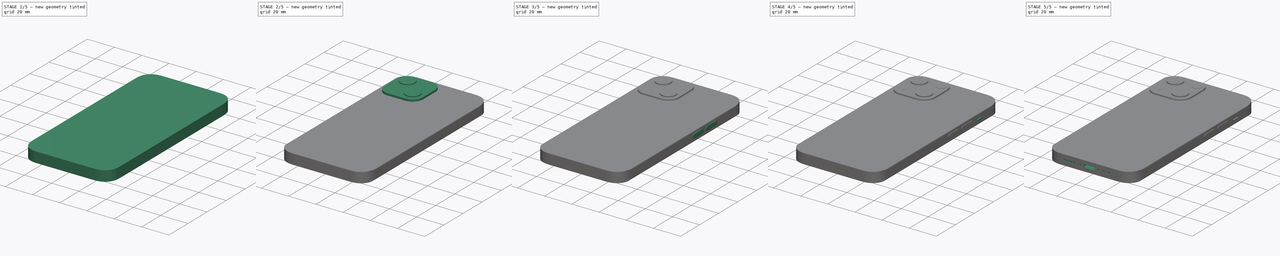
[diagram: build sequence overview — one tinted view per stage of 5, left to right]
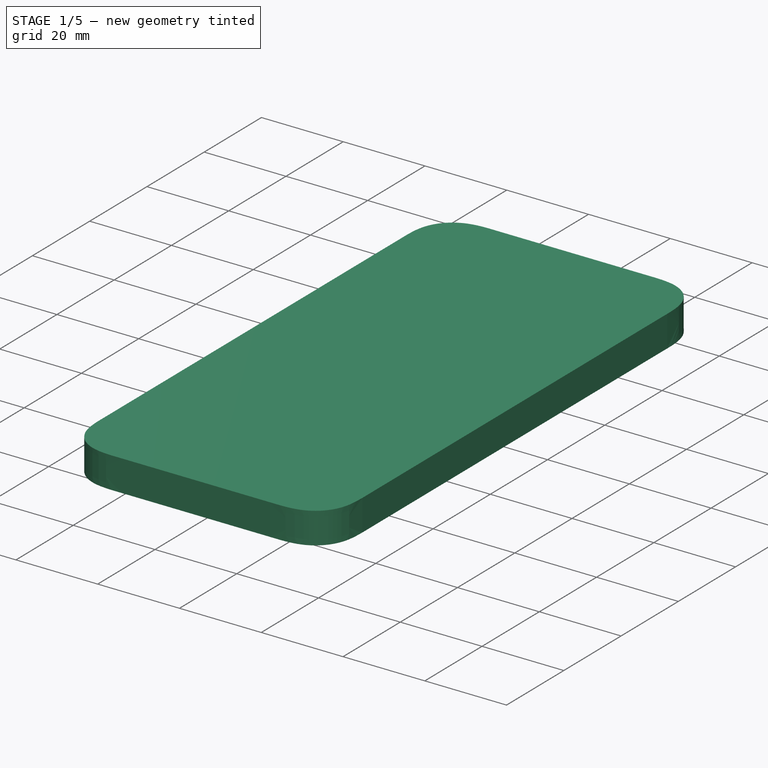
[diagram: stage 1 of 5 — iso view after this stage's code; geometry added in this stage tinted green]
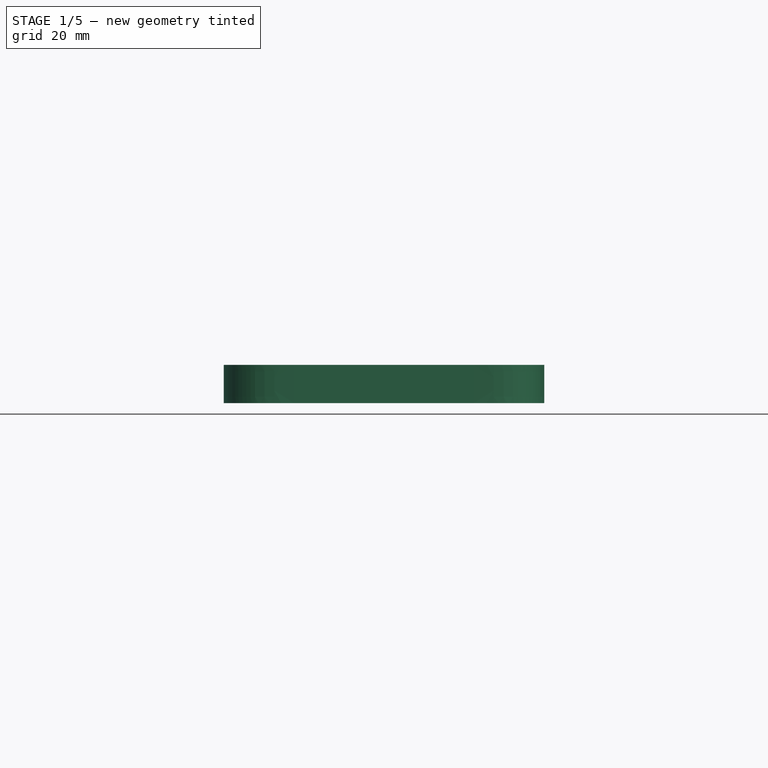
[diagram: stage 1 of 5 — front view after this stage's code; geometry added in this stage tinted green]
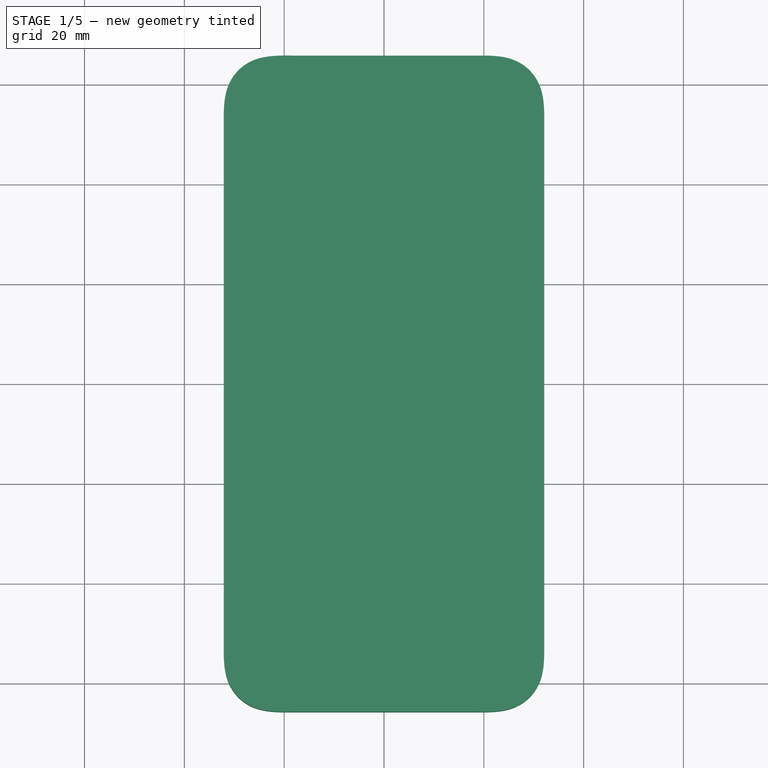
[diagram: stage 1 of 5 — top view after this stage's code; geometry added in this stage tinted green]
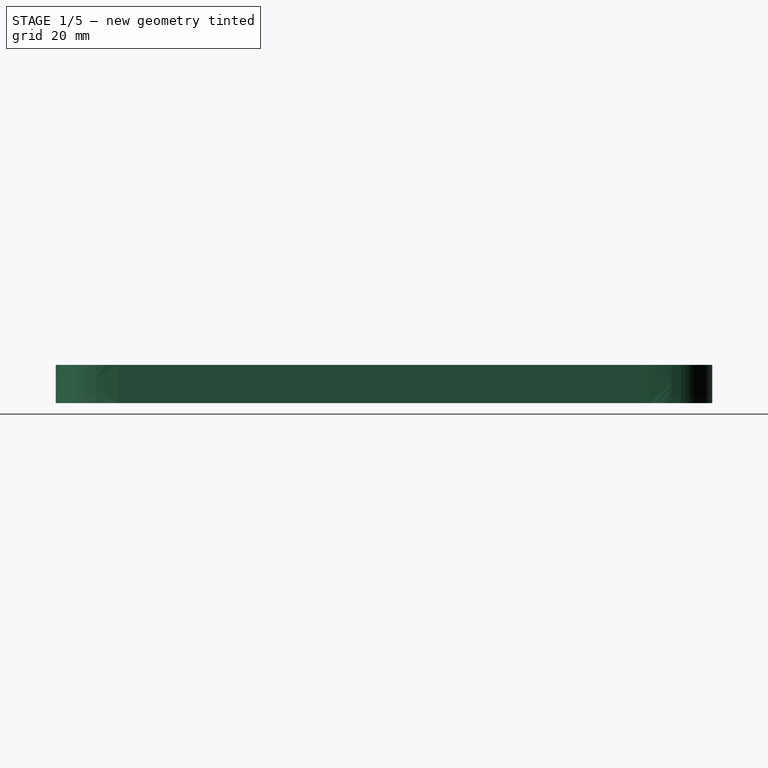
[diagram: stage 1 of 5 — right view after this stage's code; geometry added in this stage tinted green]
FCSTD DOCUMENT  (FreeCAD 1.2R20260127 (Git shallow))
Label: 13mini_almostdone
License: All rights reserved
LicenseURL: https://en.wikipedia.org/wiki/All_rights_reserved
objects: Sketcher::SketchObject×22, PartDesign::Pad×11, PartDesign::SubShapeBinder×5, App::Point×4, PartDesign::Pocket×4, App::VarSet×3, PartDesign::Body×3, PartDesign::Boolean×2, Part::Compound×1, PartDesign::Fillet×1
note: 105 computed .brp shape members not serialized (recipe doc carries the construction recipe); baked Part::Feature solids carry a one-line shape summary decoded from their .brp

FEATURE [PartDesign::Body] Body001  label="FrontViewEdgeTaperBody"
  AllowCompound = true
  Group = -> [Sketch024,Pad009]
  Origin = -> Origin002
  Tip = -> Pad009
FEATURE [App::Point] Origin007  label="Origin008"
  Role = Origin
FEATURE [PartDesign::SubShapeBinder] Binder012  label="MasterSketchBinder001"
  BindCopyOnChange = 0
  BindMode = 0
  ClaimChildren = false
  Context = -> Body002 [Binder012.]
  Fuse = false
  MakeFace = false
  Offset = 2
  OffsetFill = false
  OffsetIntersection = false
  OffsetJoinType = 0
  OffsetOpenResult = false
  PartialLoad = false
  Refine = true
  Relative = true
  _Version = 2
FEATURE [Sketcher::SketchObject] Sketch026  label="MergedCorners001"
  ArcFitTolerance = 1e-06
  ExternalGeometry = -> [Binder012]
  ExternalTypes = [0,0,0,0]
  FullyConstrained = false
  MakeInternals = false
  sketch-geometry (88):
    g0: GeomPoint [constr] X=18.01 Y=-65.75 Z=0
    g1: GeomPoint X=21.98 Y=-65.69 Z=0
    g2: GeomPoint X=25.85 Y=-64.94 Z=0
    g3: GeomPoint X=29.17 Y=-62.81 Z=0
    g4: GeomPoint X=31.28 Y=-59.51 Z=0
    g5: GeomPoint X=32.04 Y=-55.63 Z=0
    g6: GeomPoint [constr] X=18.01 Y=-65.75 Z=0
    g7: GeomPoint [constr] X=21.98 Y=-65.69 Z=0
    g8: GeomPoint [constr] X=25.85 Y=-64.94 Z=0
    g9: GeomPoint [constr] X=29.17 Y=-62.81 Z=0
    g10: GeomPoint [constr] X=31.28 Y=-59.51 Z=0
    g11: GeomPoint [constr] X=32.04 Y=-55.63 Z=0
    g12: BSplineCurve PolesCount=9 KnotsCount=7 Degree=3 IsPeriodic=0
    g13: Circle [constr] CenterX=18.01 CenterY=-65.75 CenterZ=0 NormalX=0 NormalY=0 NormalZ=1 AngleXU=0 Radius=1
    g14: Circle [constr] CenterX=19.29 CenterY=-65.7712 CenterZ=0 NormalX=0 NormalY=0 NormalZ=1 AngleXU=0 Radius=1
    g15: Circle [constr] CenterX=21.9864 CenterY=-65.7949 CenterZ=0 NormalX=0 NormalY=0 NormalZ=1 AngleXU=0 Radius=1
    g16: Circle [constr] CenterX=25.9314 CenterY=-65.2054 CenterZ=0 NormalX=0 NormalY=0 NormalZ=1 AngleXU=0 Radius=1
    g17: Circle [constr] CenterX=29.3762 CenterY=-63.0278 CenterZ=0 NormalX=0 NormalY=0 NormalZ=1 AngleXU=0 Radius=1
    g18: Circle [constr] CenterX=31.5455 CenterY=-59.5784 CenterZ=0 NormalX=0 NormalY=0 NormalZ=1 AngleXU=0 Radius=1
    g19: Circle [constr] CenterX=32.1478 CenterY=-55.6408 CenterZ=0 NormalX=0 NormalY=0 NormalZ=1 AngleXU=0 Radius=1
    g20: Circle [constr] CenterX=32.1213 CenterY=-52.94 CenterZ=0 NormalX=0 NormalY=0 NormalZ=1 AngleXU=0 Radius=1
    g21: Circle [constr] CenterX=32.1 CenterY=-51.66 CenterZ=0 NormalX=0 NormalY=0 NormalZ=1 AngleXU=0 Radius=1
    g22: GeomPoint [constr] X=-32.1 Y=51.6601 Z=0
    g23: GeomPoint X=-21.98 Y=65.69 Z=0
    g24: GeomPoint X=-25.85 Y=64.94 Z=0
    g25: GeomPoint X=-32.04 Y=55.63 Z=0
    g26: LineSegment StartX=-32.11 StartY=51.66 StartZ=0 EndX=-32.11 EndY=-51.66 EndZ=0
    g27: GeomPoint X=-29.17 Y=62.81 Z=0
    g28: GeomPoint X=-31.28 Y=59.51 Z=0
    g29: GeomPoint [constr] X=-32.04 Y=55.63 Z=0
    g30: GeomPoint [constr] X=-31.28 Y=59.51 Z=0
    g31: GeomPoint [constr] X=-29.17 Y=62.81 Z=0
    g32: GeomPoint [constr] X=-25.85 Y=64.94 Z=0
    g33: GeomPoint [constr] X=-21.98 Y=65.69 Z=0
    g34: BSplineCurve PolesCount=9 KnotsCount=7 Degree=3 IsPeriodic=0
    g35: Circle [constr] CenterX=-32.1102 CenterY=51.6575 CenterZ=0 NormalX=0 NormalY=0 NormalZ=1 AngleXU=0 Radius=1
    g36: Circle [constr] CenterX=-32.1213 CenterY=52.94 CenterZ=0 NormalX=0 NormalY=0 NormalZ=1 AngleXU=0 Radius=1
    g37: Circle [constr] CenterX=-32.0953 CenterY=55.6335 CenterZ=0 NormalX=0 NormalY=0 NormalZ=1 AngleXU=0 Radius=1
    g38: Circle [constr] CenterX=-31.5455 CenterY=59.5784 CenterZ=0 NormalX=0 NormalY=0 NormalZ=1 AngleXU=0 Radius=1
    g39: Circle [constr] CenterX=-29.3762 CenterY=63.0278 CenterZ=0 NormalX=0 NormalY=0 NormalZ=1 AngleXU=0 Radius=1
    g40: Circle [constr] CenterX=-25.9314 CenterY=65.2054 CenterZ=0 NormalX=0 NormalY=0 NormalZ=1 AngleXU=0 Radius=1
    g41: Circle [constr] CenterX=-21.9864 CenterY=65.7949 CenterZ=0 NormalX=0 NormalY=0 NormalZ=1 AngleXU=0 Radius=1
    g42: Circle [constr] CenterX=-19.29 CenterY=65.7713 CenterZ=0 NormalX=0 NormalY=0 NormalZ=1 AngleXU=0 Radius=1
    g43: Circle [constr] CenterX=-18.01 CenterY=65.75 CenterZ=0 NormalX=0 NormalY=0 NormalZ=1 AngleXU=0 Radius=1
    g44: GeomPoint X=25.85 Y=64.94 Z=0
    g45: GeomPoint X=29.17 Y=62.81 Z=0
    g46: GeomPoint X=31.28 Y=59.51 Z=0
    g47: GeomPoint X=32.04 Y=55.63 Z=0
    g48: GeomPoint [constr] X=21.98 Y=65.69 Z=0
    g49: GeomPoint [constr] X=25.85 Y=64.94 Z=0
    g50: GeomPoint [constr] X=29.17 Y=62.81 Z=0
    g51: GeomPoint [constr] X=31.28 Y=59.51 Z=0
    g52: GeomPoint [constr] X=32.04 Y=55.63 Z=0
    g53: BSplineCurve PolesCount=9 KnotsCount=7 Degree=3 IsPeriodic=0
    g54: Circle [constr] CenterX=18.0065 CenterY=65.6328 CenterZ=0 NormalX=0 NormalY=0 NormalZ=1 AngleXU=0 Radius=1
    g55: Circle [constr] CenterX=19.29 CenterY=65.7713 CenterZ=0 NormalX=0 NormalY=0 NormalZ=1 AngleXU=0 Radius=1
    g56: Circle [constr] CenterX=21.9864 CenterY=65.7949 CenterZ=0 NormalX=0 NormalY=0 NormalZ=1 AngleXU=0 Radius=1
    g57: Circle [constr] CenterX=25.9314 CenterY=65.2054 CenterZ=0 NormalX=0 NormalY=0 NormalZ=1 AngleXU=0 Radius=1
    g58: Circle [constr] CenterX=29.3762 CenterY=63.0278 CenterZ=0 NormalX=0 NormalY=0 NormalZ=1 AngleXU=0 Radius=1
    g59: Circle [constr] CenterX=31.5455 CenterY=59.5784 CenterZ=0 NormalX=0 NormalY=0 NormalZ=1 AngleXU=0 Radius=1
    g60: Circle [constr] CenterX=32.1478 CenterY=55.6408 CenterZ=0 NormalX=0 NormalY=0 NormalZ=1 AngleXU=0 Radius=1
    g61: Circle [constr] CenterX=32.1213 CenterY=52.94 CenterZ=0 NormalX=0 NormalY=0 NormalZ=1 AngleXU=0 Radius=1
    g62: Circle [constr] CenterX=32.1 CenterY=51.66 CenterZ=0 NormalX=0 NormalY=0 NormalZ=1 AngleXU=0 Radius=1
    g63: LineSegment StartX=32.1 StartY=51.66 StartZ=0 EndX=32.12 EndY=-51.66 EndZ=0
    g64: GeomPoint [constr] X=-32.1 Y=-51.66 Z=0
    g65: GeomPoint X=-21.98 Y=-65.69 Z=0
    g66: GeomPoint X=-25.85 Y=-64.94 Z=0
    g67: GeomPoint X=-29.17 Y=-62.81 Z=0
    g68: GeomPoint X=-31.28 Y=-59.51 Z=0
    g69: GeomPoint X=-32.04 Y=-55.63 Z=0
    g70: GeomPoint [constr] X=-21.98 Y=-65.69 Z=0
    g71: GeomPoint [constr] X=-25.85 Y=-64.94 Z=0
    g72: GeomPoint [constr] X=-29.17 Y=-62.81 Z=0
    g73: GeomPoint [constr] X=-31.28 Y=-59.51 Z=0
    g74: GeomPoint [constr] X=-32.04 Y=-55.63 Z=0
    g75: GeomPoint [constr] X=-32.1 Y=-51.66 Z=0
    g76: BSplineCurve PolesCount=9 KnotsCount=7 Degree=3 IsPeriodic=0
    g77: Circle [constr] CenterX=-18.0069 CenterY=-65.7611 CenterZ=0 NormalX=0 NormalY=0 NormalZ=1 AngleXU=0 Radius=1
    g78: Circle [constr] CenterX=-19.29 CenterY=-65.7712 CenterZ=0 NormalX=0 NormalY=0 NormalZ=1 AngleXU=0 Radius=1
    g79: Circle [constr] CenterX=-21.9864 CenterY=-65.7949 CenterZ=0 NormalX=0 NormalY=0 NormalZ=1 AngleXU=0 Radius=1
    g80: Circle [constr] CenterX=-25.9314 CenterY=-65.2054 CenterZ=0 NormalX=0 NormalY=0 NormalZ=1 AngleXU=0 Radius=1
    g81: Circle [constr] CenterX=-29.3762 CenterY=-63.0278 CenterZ=0 NormalX=0 NormalY=0 NormalZ=1 AngleXU=0 Radius=1
    g82: Circle [constr] CenterX=-31.5455 CenterY=-59.5784 CenterZ=0 NormalX=0 NormalY=0 NormalZ=1 AngleXU=0 Radius=1
    g83: Circle [constr] CenterX=-32.1478 CenterY=-55.6408 CenterZ=0 NormalX=0 NormalY=0 NormalZ=1 AngleXU=0 Radius=1
    g84: Circle [constr] CenterX=-32.1213 CenterY=-52.94 CenterZ=0 NormalX=0 NormalY=0 NormalZ=1 AngleXU=0 Radius=1
    g85: Circle [constr] CenterX=-32.1 CenterY=-51.66 CenterZ=0 NormalX=0 NormalY=0 NormalZ=1 AngleXU=0 Radius=1
    g86: LineSegment StartX=-18.01 StartY=-65.75 StartZ=0 EndX=18.01 EndY=-65.75 EndZ=0
    g87: LineSegment StartX=-18.01 StartY=65.75 StartZ=0 EndX=18.01 EndY=65.75 EndZ=0
  constraints (21):
    c: Coincident(g34,g26)
    c: Block(g76)
    c: Block(g12)
    c: Block(g53)
    c: Block(g34)
    c: Coincident(g86,g76)
    c: Coincident(g86,g12)
    c: Horizontal(g86)
    c: Coincident(g87,g34)
    c: Coincident(g87,g53)
    c: Horizontal(g87)
    c: PointOnObject(g0,g86)
    c: Coincident(g63,g53)
    c: Coincident(g26,g76)
    c: Coincident(g63,g12)
    c: DistanceX(g-4,g-4) = 0
    c: DistanceX(g-4,g-4) = 0
    c: Distance(g-2,g63) = 32.11
    c: Parallel(g26,g-2)
    c: Distance(g-2,g26) = 32.11
    c: Distance(g63,g26) = 64.21
FEATURE [PartDesign::Pad] Pad010  label="RoundedCornerSlabPad"
  Direction = (0,0,1)
  Length = 7.65
  Length2 = 10
  Profile = -> Sketch026
  ReferenceAxis = -> Sketch026 [N_Axis]
  Refine = true
  SideType = 0
  Suppressed = false
  Type = 0
  Type2 = 0
FEATURE [App::Point] Origin009  label="Origin011"
  Role = Origin
FEATURE [PartDesign::SubShapeBinder] Binder014  label="MasterSketchBinder002"
  BindCopyOnChange = 0
  BindMode = 0
  ClaimChildren = false
  Fuse = false
  MakeFace = false
  OffsetFill = false
  OffsetIntersection = false
  OffsetJoinType = 0
  OffsetOpenResult = false
  PartialLoad = false
  Refine = true
  Relative = true
  Support = -> [Sketch032]
  _Version = 2
FEATURE [PartDesign::SubShapeBinder] Binder015  label="CornerBinder001"
  BindCopyOnChange = 0
  BindMode = 0
  ClaimChildren = false
  Fuse = false
  MakeFace = true
  OffsetFill = false
  OffsetIntersection = false
  OffsetJoinType = 0
  OffsetOpenResult = false
  PartialLoad = false
  Refine = true
  Relative = true
  Support = -> [Binder014,Sketch033]
  _Version = 2
FEATURE [App::Point] Origin011  label="Origin013"
  Role = Origin
FEATURE [Sketcher::SketchObject] Sketch032  label="MasterSketch001"
  ArcFitTolerance = 1e-06
  ExternalTypes = [0]
  FullyConstrained = true
  MakeInternals = false
  sketch-geometry (5):
    g0: LineSegment StartX=-32.1 StartY=65.75 StartZ=0 EndX=-32.1 EndY=-65.75 EndZ=0
    g1: LineSegment StartX=-32.1 StartY=-65.75 StartZ=0 EndX=32.1 EndY=-65.75 EndZ=0
    g2: LineSegment StartX=32.1 StartY=-65.75 StartZ=0 EndX=32.1 EndY=65.75 EndZ=0
    g3: LineSegment StartX=32.1 StartY=65.75 StartZ=0 EndX=-32.1 EndY=65.75 EndZ=0
    g4: GeomPoint [constr] X=-32.1 Y=65.75 Z=0
  constraints (11):
    c: Coincident(g0,g1)
    c: Coincident(g1,g2)
    c: Coincident(g2,g3)
    c: Coincident(g3,g0)
    c: Vertical(g2)
    c: Horizontal(g1)
    c: Distance(g1,g3) = 131.5
    c: DistanceX(g3,g3) = 64.2
    c: Symmetric(g0,g2,g-2)
    c: Symmetric(g0,g0,g-1)
    c: Coincident(g4,g0)
FEATURE [Sketcher::SketchObject] Sketch033  label="q001"
  ArcFitTolerance = 1e-06
  AttachmentSupport = -> [Origin010]
  ExternalGeometry = -> [Binder014]
  ExternalTypes = [0,0]
  FullyConstrained = true
  MakeInternals = false
  MapMode = 5
  expr: Constraints[12] = <<CornerProfile001>>.p1_xy
  expr: Constraints[14] = <<CornerProfile001>>.p3_y
  expr: Constraints[15] = <<CornerProfile001>>.p3_x
  expr: Constraints[16] = <<CornerProfile001>>.p2_x
  expr: Constraints[17] = <<CornerProfile001>>.p4_y
  expr: Constraints[1] = <<CornerProfile001>>.p5_xy
  expr: Constraints[2] = <<CornerProfile001>>.p6_xy
  expr: Constraints[3] = <<CornerProfile001>>.p6_xy
  expr: Constraints[50] = <<CornerProfile001>>.fauxG3taper_branch
  expr: Constraints[51] = VarSet003.fauxG3taper
  expr: Constraints[52] = <<CornerProfile001>>.fauxG3taper_branch
  expr: Constraints[53] = <<CornerProfile001>>.fauxG3taper
  expr: Constraints[6] = <<CornerProfile001>>.p5_xy
  expr: Constraints[7] = <<CornerProfile001>>.p4_x
  expr: Constraints[8] = <<CornerProfile001>>.p1_xy
  sketch-geometry (25):
    g0: GeomPoint [constr] X=-32.1 Y=51.66 Z=0
    g1: GeomPoint X=-21.98 Y=65.69 Z=0
    g2: GeomPoint X=-25.85 Y=64.94 Z=0
    g3: GeomPoint X=-32.04 Y=55.63 Z=0
    g4: LineSegment StartX=-18.01 StartY=65.75 StartZ=0 EndX=0 EndY=65.75 EndZ=0
    g5: LineSegment StartX=-32.1 StartY=51.66 StartZ=0 EndX=-32.1 EndY=0 EndZ=0
    g6: GeomPoint X=-29.17 Y=62.81 Z=0
    g7: GeomPoint X=-31.28 Y=59.51 Z=0
    g8-g14: GeomPoint [constr] x7 (B-spline internal-alignment scaffolding for g15; pole/knot coordinates omitted)
    g15: BSplineCurve PolesCount=9 KnotsCount=7 Degree=3 IsPeriodic=0
    g16-g24: Circle [constr] x9 (B-spline internal-alignment scaffolding for g15; pole/knot coordinates omitted)
  constraints (48):
    c: Distance(g2,g-3) = 0.81
    c: Distance(g3,g-3) = 10.12
    c: Distance(g0,g-3) = 14.09
    c: DistanceX(g-3,g4) = 14.09
    c: Coincident(g0,g5)
    c: PointOnObject(g0,g-4)
    c: Distance(g1,g-4) = 10.12
    c: Distance(g2,g-4) = 6.25
    c: Distance(g3,g-4) = 0.06
    c: PointOnObject(g4,g-2)
    c: PointOnObject(g5,g-1)
    c: PointOnObject(g5,g-4)
    c: Distance(g1,g-3) = 0.06
    c: Tangent(g4,g-3) = 1.5708
    c: Distance(g6,g-3) = 2.94
    c: Distance(g6,g-4) = 2.93
    c: Distance(g7,g-4) = 0.82
    c: DistanceY(g7,g-4) = 6.24
    c: InternalAlignment(g8-g14 -> g15) x7
    c: InternalAlignment(g16,g15)
    c: Weight(g16) = 1
    c: InternalAlignment(g17,g15)
    c: Equal(g17,g16)
    c: InternalAlignment(g18,g15)
    c: Equal(g18,g16)
    c: InternalAlignment(g19,g15)
    c: Equal(g19,g16)
    c: InternalAlignment(g20,g15)
    c: Equal(g20,g16)
    c: InternalAlignment(g21,g15)
    c: Equal(g21,g16)
    c: InternalAlignment(g22,g15)
    c: Equal(g22,g16)
    c: InternalAlignment(g23,g15)
    c: Equal(g23,g16)
    c: InternalAlignment(g24,g15)
    c: Equal(g24,g16)
    c: Coincident(g8,g0)
    c: Coincident(g9,g3)
    c: Coincident(g10,g7)
    c: Coincident(g11,g6)
    c: Coincident(g12,g2)
    c: Coincident(g13,g1)
    c: Coincident(g14,g4)
    c: Distance(g17,g-4) = 0.02125
    c: DistanceY(g15,g17) = 1.28
    c: Distance(g23,g-3) = 0.02125
    c: DistanceX(g23,g15) = 1.28
FEATURE [Sketcher::SketchObject] Sketch034  label="RCamRef001"
  ArcFitTolerance = 1e-06
  AttachmentSupport = -> [Origin010]
  ExternalGeometry = -> [Binder015,Binder014]
  ExternalTypes = [0,0,0]
  FullyConstrained = false
  MakeInternals = false
  MapMode = 5
  expr: .Constraints.CameraBayToScreenEdge = VarSet004.CameraBayToScreenEdge
  expr: .Constraints.MicFromEdgeY = VarSet004.MicFromEdgeY
  expr: .Constraints.ScreenToEdgeGap = VarSet004.ScreenToEdgeGap
  expr: Constraints[16] = VarSet004.MicFromEdgeX
  expr: Constraints[25] = Sketch033.Constraints[0]
  expr: Constraints[26] = Sketch033.Constraints[1]
  expr: Constraints[27] = Sketch033.Constraints[2]
  expr: Constraints[28] = Sketch033.Constraints[3]
  expr: Constraints[31] = Sketch033.Constraints[6]
  expr: Constraints[32] = Sketch033.Constraints[7]
  expr: Constraints[33] = Sketch033.Constraints[8]
  expr: Constraints[37] = Sketch033.Constraints[12]
  expr: Constraints[39] = Sketch033.Constraints[14]
  expr: Constraints[40] = Sketch033.Constraints[15]
  expr: Constraints[41] = Sketch033.Constraints[16]
  expr: Constraints[42] = Sketch033.Constraints[17]
  expr: Constraints[51] = Sketch033.Constraints[26]
  expr: Constraints[75] = Sketch033.Constraints[50]
  expr: Constraints[76] = Sketch033.Constraints[51]
  expr: Constraints[77] = Sketch033.Constraints[52]
  expr: Constraints[78] = Sketch033.Constraints[53]
  expr: Constraints[80] = VarSet004.ScreenToEdgeGap
  expr: Constraints[81] = VarSet004.ScreenToEdgeGap
  expr: Constraints[83] = VarSet004.ScreenToEdgeGap
  expr: Constraints[85] = VarSet004.ScreenToEdgeGap
  expr: Constraints[87] = VarSet004.ScreenToEdgeGap
  expr: Constraints[89] = VarSet004.ScreenToEdgeGap
  expr: Constraints[91] = VarSet004.ScreenToEdgeGap
  sketch-geometry (122):
    g0: Circle CenterX=-21.25 CenterY=54.9 CenterZ=0 NormalX=0 NormalY=0 NormalZ=1 AngleXU=0 Radius=6.845
    g1: Circle CenterX=-8.89 CenterY=42.54 CenterZ=0 NormalX=0 NormalY=0 NormalZ=1 AngleXU=0 Radius=6.845
    g2: LineSegment [constr] StartX=-18.01 StartY=65.75 StartZ=0 EndX=-20.36 EndY=65.75 EndZ=0
    g3: LineSegment [constr] StartX=-32.1 StartY=51.66 StartZ=0 EndX=-32.1 EndY=49.31 EndZ=0
    g4: GeomPoint [constr] X=-31.11 Y=54.9 Z=0
    g5: GeomPoint [constr] X=-29.23 Y=54.9 Z=0
    g6: Circle CenterX=-22.7 CenterY=41.09 CenterZ=0 NormalX=0 NormalY=0 NormalZ=1 AngleXU=0 Radius=1.2
    g7: Circle CenterX=-6.32203 CenterY=56.77 CenterZ=0 NormalX=0 NormalY=0 NormalZ=1 AngleXU=0 Radius=3.14
    g8: LineSegment [constr] StartX=-32.1 StartY=51.66 StartZ=0 EndX=-1.28 EndY=51.66 EndZ=0
    g9: GeomPoint [constr] X=-32.1 Y=51.66 Z=0
    g10: GeomPoint X=-21.98 Y=65.69 Z=0
    g11: GeomPoint X=-25.85 Y=64.94 Z=0
    g12: GeomPoint X=-32.04 Y=55.63 Z=0
    g13: LineSegment StartX=-18.01 StartY=65.75 StartZ=0 EndX=0 EndY=65.75 EndZ=0
    g14: LineSegment StartX=-32.1 StartY=51.66 StartZ=0 EndX=-32.1 EndY=0 EndZ=0
    g15: GeomPoint X=-29.17 Y=62.81 Z=0
    g16: GeomPoint X=-31.28 Y=59.51 Z=0
    g17-g23: GeomPoint [constr] x7 (B-spline internal-alignment scaffolding for g24; pole/knot coordinates omitted)
    g24: BSplineCurve PolesCount=9 KnotsCount=7 Degree=3 IsPeriodic=0
    g25-g33: Circle [constr] x9 (B-spline internal-alignment scaffolding for g24; pole/knot coordinates omitted)
    g34: LineSegment [constr] StartX=-28.4687 StartY=62.1112 StartZ=0 EndX=-29.17 EndY=62.81 EndZ=0
    g35: LineSegment [constr] StartX=-25.8501 StartY=64.94 StartZ=0 EndX=-25.5006 EndY=64.0137 EndZ=0
    g36: LineSegment [constr] StartX=-21.9175 StartY=64.702 StartZ=0 EndX=-21.9779 EndY=65.6901 EndZ=0
    g37: LineSegment [constr] StartX=-31.2784 StartY=59.5141 StartZ=0 EndX=-30.3528 EndY=59.1629 EndZ=0
    g38: LineSegment [constr] StartX=-31.0519 StartY=55.5685 StartZ=0 EndX=-32.04 EndY=55.63 EndZ=0
    g39: LineSegment [constr] StartX=-31.1035 StartY=52.9409 StartZ=0 EndX=-32.0935 EndY=52.9401 EndZ=0
    g40: LineSegment [constr] StartX=-19.2902 StartY=65.7432 StartZ=0 EndX=-19.2906 EndY=64.7532 EndZ=0
    g41-g48: GeomPoint [constr] x8 (B-spline internal-alignment scaffolding for g49; pole/knot coordinates omitted)
    g49: BSplineCurve PolesCount=10 KnotsCount=8 Degree=3 IsPeriodic=0
    g50-g59: Circle [constr] x10 (B-spline internal-alignment scaffolding for g49; pole/knot coordinates omitted)
    g60: BSplineCurve PolesCount=10 KnotsCount=8 Degree=3 IsPeriodic=0
    g61-g68: GeomPoint [constr] x8 (B-spline internal-alignment scaffolding for g60; pole/knot coordinates omitted)
    g69-g78: Circle [constr] x10 (B-spline internal-alignment scaffolding for g60; pole/knot coordinates omitted)
    g79: BSplineCurve PolesCount=10 KnotsCount=8 Degree=3 IsPeriodic=0
    g80-g87: GeomPoint [constr] x8 (B-spline internal-alignment scaffolding for g79; pole/knot coordinates omitted)
    g88-g97: Circle [constr] x10 (B-spline internal-alignment scaffolding for g79; pole/knot coordinates omitted)
    g98: BSplineCurve PolesCount=10 KnotsCount=8 Degree=3 IsPeriodic=0
    g99-g106: GeomPoint [constr] x8 (B-spline internal-alignment scaffolding for g98; pole/knot coordinates omitted)
    g107-g116: Circle [constr] x10 (B-spline internal-alignment scaffolding for g98; pole/knot coordinates omitted)
    g117: LineSegment StartX=-31.1035 StartY=52.9409 StartZ=0 EndX=-31.1035 EndY=-52.9409 EndZ=0
    g118: LineSegment StartX=-18.0104 StartY=-64.7452 StartZ=0 EndX=18.0104 EndY=-64.7452 EndZ=0
    g119: LineSegment StartX=31.1035 StartY=52.9409 StartZ=0 EndX=31.1035 EndY=-52.9409 EndZ=0
    g120: LineSegment StartX=-18.0104 StartY=64.7452 StartZ=0 EndX=18.0104 EndY=64.7452 EndZ=0
    g121: LineSegment [constr] StartX=-21.25 StartY=54.9 StartZ=0 EndX=0 EndY=54.9 EndZ=0
  constraints (188):
    c: Diameter(g0) = 13.69
    c: Diameter(g1) = 13.69
    c: Distance(g2) = 2.35
    c: Horizontal(g2)
    c: Distance(g3) = 2.35
    c: DistanceY(g0,g-5) = 10.85
    c: Distance(g0,g-4) = 10.85
    c: DistanceX(g-5,g1) = 23.21
    c: Distance(g1,g-5) = 23.21
    c: PointOnObject(g3,g-4)
    c: DistanceX(g0,g1) = 12.36
    c: Distance(g4,g-4) = 0.99  'ScreenToEdgeGap'
    c: DistanceY(g4,g-5) = 10.85
    c: Distance(g5,g-5) = 10.85
    c: Distance(g4,g5) = 1.88  'CameraBayToScreenEdge'
    c: Diameter(g6) = 2.4
    c: Distance(g6,g-4) = 9.4
    c: DistanceY(g6,g-5) = 24.66  'MicFromEdgeY'
    c: Diameter(g7) = 6.28
    c: Distance(g7,g-5) = 8.98
    c: Coincident(g8,g3)
    c: Horizontal(g8)
    c: DistanceX(g-5,g2) = 14.09
    c: DistanceY(g3,g-5) = 14.09
    c: Distance(g8,g-4) = 30.82
    c: Distance(g11,g-6) = 0.81
    c: Distance(g12,g-6) = 10.12
    c: Distance(g9,g-6) = 14.09
    c: DistanceX(g-6,g13) = 14.09
    c: Coincident(g9,g14)
    c: PointOnObject(g9,g-7)
    c: Distance(g10,g-7) = 10.12
    c: Distance(g11,g-7) = 6.25
    c: Distance(g12,g-7) = 0.06
    c: PointOnObject(g13,g-2)
    c: PointOnObject(g14,g-1)
    c: PointOnObject(g14,g-7)
    c: Distance(g10,g-6) = 0.06
    c: Tangent(g13,g-6) = 1.5708
    c: Distance(g15,g-6) = 2.94
    c: Distance(g15,g-7) = 2.93
    c: Distance(g16,g-7) = 0.82
    c: DistanceY(g16,g-7) = 6.24
    c: InternalAlignment(g17-g23 -> g24) x7
    c: InternalAlignment(g25,g24)
    c: Weight(g25) = 1
    c: InternalAlignment(g26,g24)
    c: Equal(g26,g25)
    c: InternalAlignment(g27,g24)
    c: Equal(g27,g25)
    c: InternalAlignment(g28,g24)
    c: Equal(g28,g25)
    c: InternalAlignment(g29,g24)
    c: Equal(g29,g25)
    c: InternalAlignment(g30,g24)
    c: Equal(g30,g25)
    c: InternalAlignment(g31,g24)
    c: Equal(g31,g25)
    c: InternalAlignment(g32,g24)
    c: Equal(g32,g25)
    c: InternalAlignment(g33,g24)
    c: Equal(g33,g25)
    c: Coincident(g17,g9)
    c: Coincident(g18,g12)
    c: Coincident(g19,g16)
    c: Coincident(g20,g15)
    c: Coincident(g21,g11)
    c: Coincident(g22,g10)
    c: Coincident(g23,g13)
    c: Distance(g26,g-7) = 0.02125
    c: DistanceY(g24,g26) = 1.28
    c: Distance(g32,g-6) = 0.02125
    c: DistanceX(g32,g24) = 1.28
    c: Perpendicular(g34,g24) = 1.5708
    c: Distance(g34,g34) = 0.99
    c: Distance(g35,g35) = 0.99
    c: Perpendicular(g35,g24) = 4.71239
    c: Distance(g36,g36) = 0.99
    c: Perpendicular(g36,g24) = 1.5708
    c: Distance(g37,g37) = 0.99
    c: Perpendicular(g37,g24) = 4.71239
    c: Distance(g38,g38) = 0.99
    c: Perpendicular(g38,g24) = 1.5708
    c: Distance(g39,g39) = 0.99
    c: Perpendicular(g39,g24) = 1.5708
    c: Distance(g40,g40) = 0.99
    c: Perpendicular(g40,g24) = 4.71239
    c: InternalAlignment(g41-g48 -> g49) x8
    c: InternalAlignment(g50,g49)
    c: Weight(g50) = 1
    c: InternalAlignment(g51,g49)
    c: Equal(g51,g50)
    c: InternalAlignment(g52,g49)
    c: Equal(g52,g50)
    c: InternalAlignment(g53,g49)
    c: Equal(g53,g50)
    c: InternalAlignment(g54,g49)
    c: Equal(g54,g50)
    c: InternalAlignment(g55,g49)
    c: Equal(g55,g50)
    c: InternalAlignment(g56,g49)
    c: Equal(g56,g50)
    c: InternalAlignment(g57,g49)
    c: Equal(g57,g50)
    c: InternalAlignment(g58,g49)
    c: Equal(g58,g50)
    c: InternalAlignment(g59,g49)
    c: Equal(g59,g50)
    c: Coincident(g41,g39)
    c: Coincident(g42,g38)
    c: Coincident(g43,g37)
    c: Coincident(g44,g34)
    c: Coincident(g45,g35)
    c: Coincident(g46,g36)
    c: Coincident(g47,g40)
    c: InternalAlignment(g61-g69 -> g60) x9
    c: Weight(g69) = 1
    c: InternalAlignment(g70,g60)
    c: Equal(g70,g69)
    c: InternalAlignment(g71,g60)
    c: Equal(g71,g69)
    c: InternalAlignment(g72,g60)
    c: Equal(g72,g69)
    c: InternalAlignment(g73,g60)
    c: Equal(g73,g69)
    c: InternalAlignment(g74,g60)
    c: Equal(g74,g69)
    c: InternalAlignment(g75,g60)
    c: Equal(g75,g69)
    c: InternalAlignment(g76,g60)
    c: Equal(g76,g69)
    c: InternalAlignment(g77,g60)
    c: Equal(g77,g69)
    c: InternalAlignment(g78,g60)
    c: Equal(g78,g69)
    c: InternalAlignment(g80-g88 -> g79) x9
    c: Weight(g88) = 1
    c: InternalAlignment(g89,g79)
    c: Equal(g89,g88)
    c: InternalAlignment(g90,g79)
    c: Equal(g90,g88)
    c: InternalAlignment(g91,g79)
    c: Equal(g91,g88)
    c: InternalAlignment(g92,g79)
    c: Equal(g92,g88)
    c: InternalAlignment(g93,g79)
    c: Equal(g93,g88)
    c: InternalAlignment(g94,g79)
    c: Equal(g94,g88)
    c: InternalAlignment(g95,g79)
    c: Equal(g95,g88)
    c: InternalAlignment(g96,g79)
    c: Equal(g96,g88)
    c: InternalAlignment(g97,g79)
    c: Equal(g97,g88)
    c: InternalAlignment(g99-g107 -> g98) x9
    c: Weight(g107) = 1
    c: InternalAlignment(g108,g98)
    c: Equal(g108,g107)
    c: InternalAlignment(g109,g98)
    c: Equal(g109,g107)
    c: InternalAlignment(g110,g98)
    c: Equal(g110,g107)
    c: InternalAlignment(g111,g98)
    c: Equal(g111,g107)
    c: InternalAlignment(g112,g98)
    c: Equal(g112,g107)
    c: InternalAlignment(g113,g98)
    c: Equal(g113,g107)
    c: InternalAlignment(g114,g98)
    c: Equal(g114,g107)
    c: InternalAlignment(g115,g98)
    c: Equal(g115,g107)
    c: InternalAlignment(g116,g98)
    c: Equal(g116,g107)
    c: Coincident(g118,g98)
    c: Coincident(g118,g79)
    c: Horizontal(g118)
    c: Coincident(g119,g60)
    c: Coincident(g119,g79)
    c: Vertical(g119)
    c: Coincident(g120,g49)
    c: Coincident(g120,g60)
    c: Horizontal(g120)
    c: Distance(g5,g0) = 1.135
    c: Coincident(g121,g0)
    c: PointOnObject(g121,g-2)
    c: Horizontal(g121)
FEATURE [App::VarSet] VarSet003  label="CornerProfile001"
  fauxG3taper = 1.28
  fauxG3taper_branch = 0.02125
  p1_xy = 0.06
  p2_x = 0.82
  p2_y = 0.81
  p3_x = 2.93
  p3_y = 2.94
  p4_x = 6.25
  p4_y = 6.24
  p5_xy = 10.12
  p6_xy = 14.09
FEATURE [App::VarSet] VarSet004  label="CameraBay001"
  CameraBayToScreenEdge = 1.88
  FlashFromEdgeY = 8.81
  MicFromEdgeX = 9.4
  MicFromEdgeY = 24.66
  ScreenToEdgeGap = 0.99
FEATURE [Part::Compound] Compound  label="ProbablyNoLongerNeeded"
  Links = -> [Binder014,Binder015,Origin010,Sketch032,Sketch033,Sketch034,VarSet003,VarSet004]
FEATURE [PartDesign::SubShapeBinder] Binder016
  BindCopyOnChange = 0
  BindMode = 0
  ClaimChildren = false
  Context = -> Body002 [Binder016.]
  Fuse = false
  MakeFace = true
  OffsetFill = false
  OffsetIntersection = false
  OffsetJoinType = 0
  OffsetOpenResult = false
  PartialLoad = false
  Placement = pos=(28,-62,0) rot=(0,0,1;0rad)
  Refine = true
  Relative = true
  Support = -> [Sketch034]
  _Version = 2
FEATURE [Sketcher::SketchObject] Sketch028  label="CameraBayBorder"
  ArcFitTolerance = 1e-06
  AttachmentSupport = -> [Origin008,Binder016]
  ExternalGeometry = -> [Binder016]
  ExternalTypes = [0,0]
  FullyConstrained = true
  MakeInternals = false
  MapMode = 5
  expr: Constraints[23] = VarSet001.CameraBayToScreenEdge
  expr: Constraints[24] = VarSet001.CameraBayToScreenEdge
  sketch-geometry (10):
    g0: LineSegment StartX=-1.22347 StartY=-6.8148 StartZ=0 EndX=-1.22347 EndY=-19.7748 EndZ=0
    g1: LineSegment StartX=6.45653 StartY=-27.4548 StartZ=0 EndX=19.4165 EndY=-27.4548 EndZ=0
    g2: LineSegment StartX=27.0965 StartY=-19.7748 StartZ=0 EndX=27.0965 EndY=-6.8148 EndZ=0
    g3: LineSegment StartX=19.4165 StartY=0.8652 StartZ=0 EndX=6.45653 EndY=0.8652 EndZ=0
    g4: ArcOfCircle CenterX=6.45653 CenterY=-6.8148 CenterZ=0 NormalX=0 NormalY=0 NormalZ=1 AngleXU=0 Radius=7.68 StartAngle=1.5708 EndAngle=3.14159
    g5: ArcOfCircle CenterX=6.45653 CenterY=-19.7748 CenterZ=0 NormalX=0 NormalY=0 NormalZ=1 AngleXU=0 Radius=7.68 StartAngle=3.14159 EndAngle=4.71239
    g6: ArcOfCircle CenterX=19.4165 CenterY=-19.7748 CenterZ=0 NormalX=0 NormalY=0 NormalZ=1 AngleXU=0 Radius=7.68 StartAngle=4.71239 EndAngle=6.28319
    g7: ArcOfCircle CenterX=19.4165 CenterY=-6.8148 CenterZ=0 NormalX=0 NormalY=0 NormalZ=1 AngleXU=0 Radius=7.68 StartAngle=1e-16 EndAngle=1.5708
    g8: GeomPoint [constr] X=27.0965 Y=-27.4548 Z=0
    g9: LineSegment [constr] StartX=-1.22347 StartY=-6.8148 StartZ=0 EndX=-0.08847 EndY=-6.8148 EndZ=0
  constraints (25):
    c: Tangent(g0,g4) = -1.5708
    c: Tangent(g0,g5) = -1.5708
    c: Tangent(g1,g5) = -1.5708
    c: Tangent(g1,g6) = -1.5708
    c: Tangent(g2,g6) = -1.5708
    c: Tangent(g2,g7) = -1.5708
    c: Tangent(g3,g7) = -1.5708
    c: Tangent(g3,g4) = -1.5708
    c: Vertical(g0)
    c: Vertical(g2)
    c: Horizontal(g1)
    c: Horizontal(g3)
    c: Equal(g4,g5)
    c: Equal(g5,g6)
    c: Equal(g6,g7)
    c: PointOnObject(g8,g1)
    c: PointOnObject(g8,g2)
    c: Distance(g0,g2) = 28.32
    c: Distance(g1,g3) = 28.32
    c: Radius(g5) = 7.68
    c: Distance(g9) = 1.135
    c: Horizontal(g9)
    c: Coincident(g9,g0)
    c: Distance(g-3,g0) = 1.88
    c: Distance(g-4,g3) = 1.88
FEATURE [PartDesign::Pad] Pad012  label="CameraBayBorderPad"
  Direction = (0,0,1)
  Length = 1.45
  Length2 = 10
  Profile = -> Sketch028
  ReferenceAxis = -> Sketch028 [N_Axis]
  Refine = true
  SideType = 0
  Suppressed = false
  Type = 0
  Type2 = 0
FEATURE [Sketcher::SketchObject] Sketch029  label="LensOuterRingsX2Sketch"
  ArcFitTolerance = 1e-06
  AttachmentSupport = -> [Pad012]
  ExternalGeometry = -> [Pad012]
  ExternalTypes = [0]
  FullyConstrained = true
  MakeInternals = false
  MapMode = 5
  Placement = pos=(0,0,1.45) rot=(0,0,1;0rad)
  sketch-geometry (3):
    g0: Circle CenterX=19.1165 CenterY=-19.1748 CenterZ=0 NormalX=0 NormalY=0 NormalZ=1 AngleXU=0 Radius=6.845
    g1: Circle CenterX=6.75653 CenterY=-6.8148 CenterZ=0 NormalX=0 NormalY=0 NormalZ=1 AngleXU=0 Radius=6.845
    g2: LineSegment [constr] StartX=-1.22347 StartY=-6.8148 StartZ=0 EndX=-0.08847 EndY=-6.8148 EndZ=0
  constraints (8):
    c: Diameter(g0) = 13.69
    c: Diameter(g1) = 13.69
    c: DistanceX(g1,g0) = 12.36
    c: DistanceY(g0,g1) = 12.36
    c: Distance(g2) = 1.135
    c: Horizontal(g2)
    c: Coincident(g2,g-3)
    c: Perpendicular(g2,g1) = 4.71239
FEATURE [PartDesign::Pad] Pad013  label="LensOuterRingsX2"
  BaseFeature = -> Pad012
  Direction = (0,0,1)
  Length = 0.03
  Length2 = 10
  Profile = -> Sketch029
  ReferenceAxis = -> Sketch029 [N_Axis]
  Refine = true
  SideType = 0
  Suppressed = false
  Type = 0
  Type2 = 0
FEATURE [Sketcher::SketchObject] Sketch031  label="LensX2Sketch"
  ArcFitTolerance = 1e-06
  AttachmentSupport = -> [Origin008]
  ExternalGeometry = -> [Pad013]
  ExternalTypes = [0,0]
  FullyConstrained = true
  MakeInternals = false
  MapMode = 5
  sketch-geometry (2):
    g0: Circle CenterX=6.75653 CenterY=-6.8148 CenterZ=0 NormalX=0 NormalY=0 NormalZ=1 AngleXU=0 Radius=5.345
    g1: Circle CenterX=19.1165 CenterY=-19.1748 CenterZ=0 NormalX=0 NormalY=0 NormalZ=1 AngleXU=0 Radius=5.345
  constraints (4):
    c: Coincident(g0,g-3)
    c: Distance(g0,g-3) = 1.5
    c: Distance(g1,g-4) = 1.5
    c: Coincident(g1,g-4)
FEATURE [PartDesign::Pad] Pad014  label="LensX2"
  BaseFeature = -> Pad013
  Direction = (0,0,1)
  Length = 2.25
  Length2 = 10
  Profile = -> Sketch031
  ReferenceAxis = -> Sketch031 [N_Axis]
  Refine = true
  SideType = 0
  Suppressed = false
  Type = 0
  Type2 = 0
  expr: Length = 1.45 mm + 0.8 mm
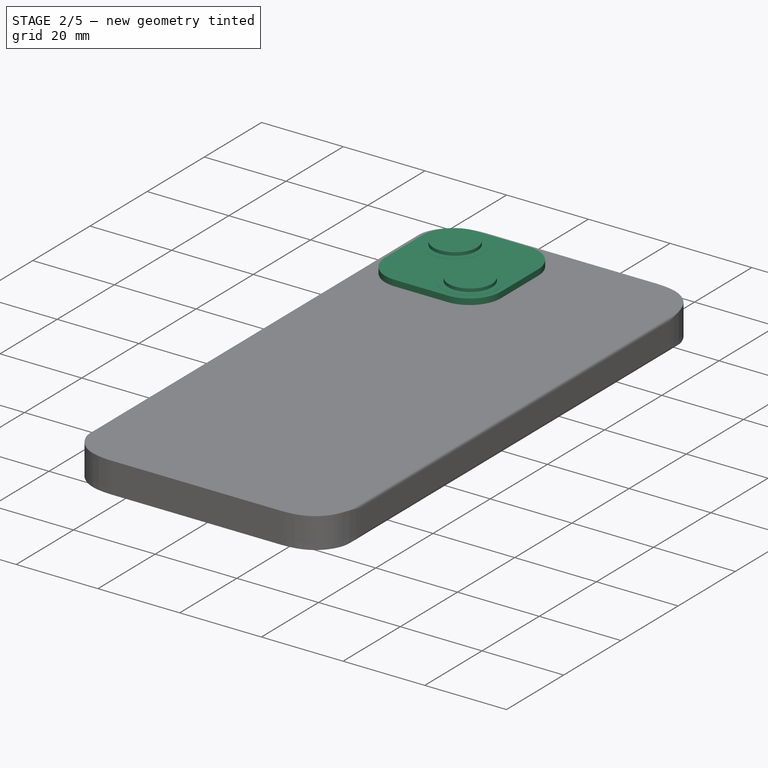
[diagram: stage 2 of 5 — iso view after this stage's code; geometry added in this stage tinted green]
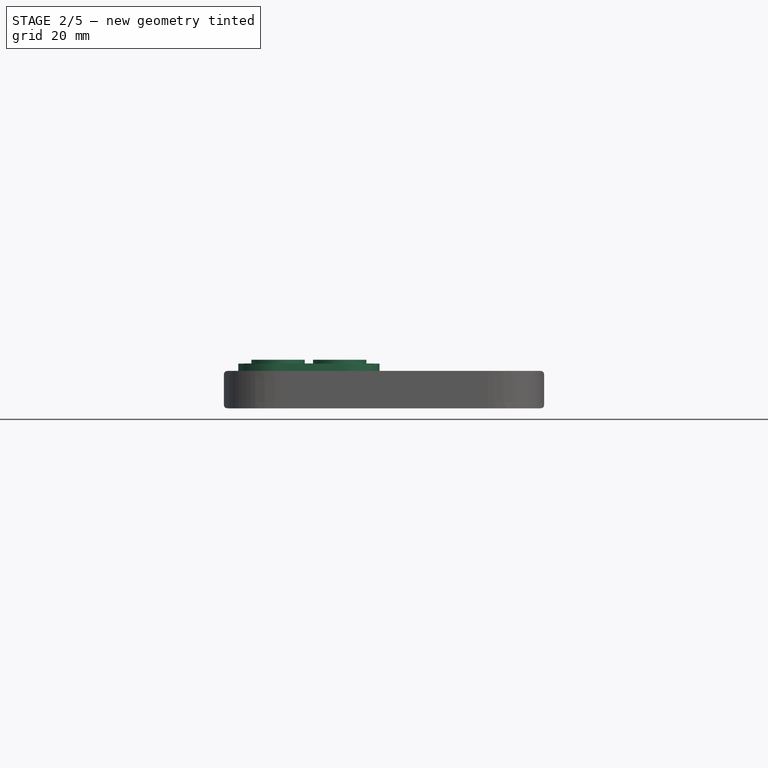
[diagram: stage 2 of 5 — front view after this stage's code; geometry added in this stage tinted green]
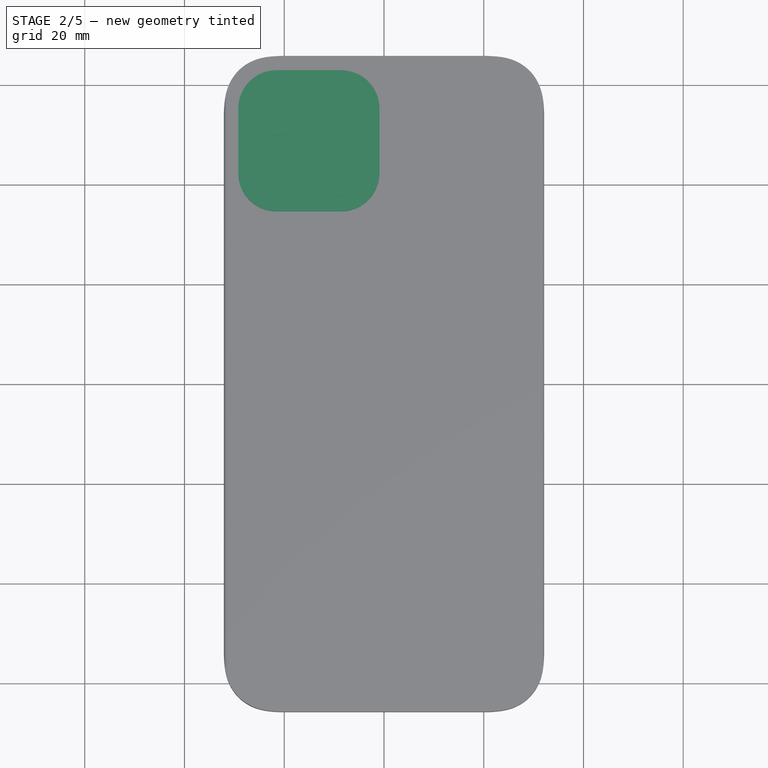
[diagram: stage 2 of 5 — top view after this stage's code; geometry added in this stage tinted green]
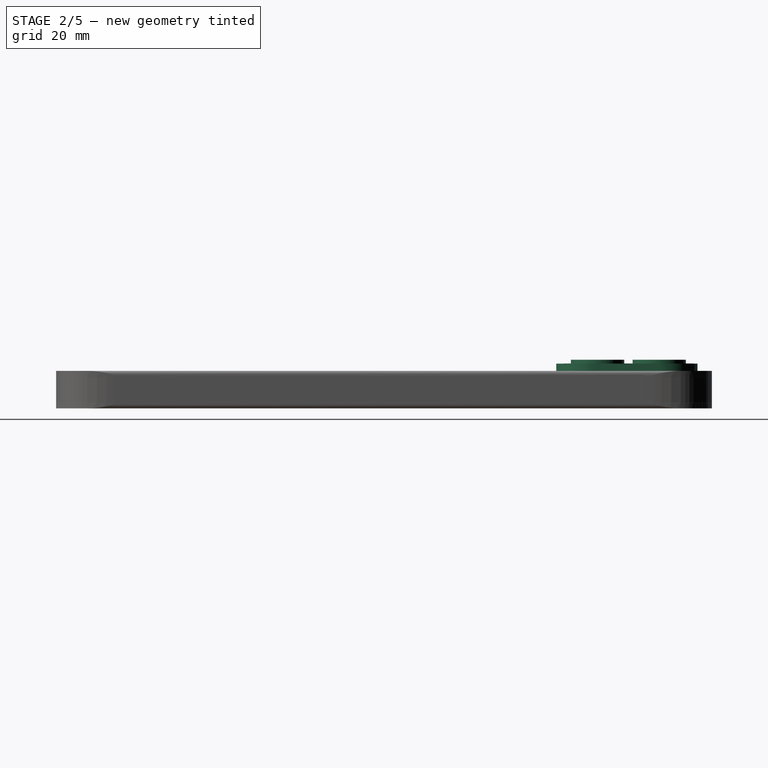
[diagram: stage 2 of 5 — right view after this stage's code; geometry added in this stage tinted green]
FEATURE [Sketcher::SketchObject] Sketch  label="MasterSketch"
  ArcFitTolerance = 1e-06
  ExternalTypes = [0]
  FullyConstrained = true
  MakeInternals = false
  sketch-geometry (5):
    g0: LineSegment StartX=-32.1 StartY=65.75 StartZ=0 EndX=-32.1 EndY=-65.75 EndZ=0
    g1: LineSegment StartX=-32.1 StartY=-65.75 StartZ=0 EndX=32.1 EndY=-65.75 EndZ=0
    g2: LineSegment StartX=32.1 StartY=-65.75 StartZ=0 EndX=32.1 EndY=65.75 EndZ=0
    g3: LineSegment StartX=32.1 StartY=65.75 StartZ=0 EndX=-32.1 EndY=65.75 EndZ=0
    g4: GeomPoint [constr] X=-32.1 Y=65.75 Z=0
  constraints (11):
    c: Coincident(g0,g1)
    c: Coincident(g1,g2)
    c: Coincident(g2,g3)
    c: Coincident(g3,g0)
    c: Vertical(g2)
    c: Horizontal(g1)
    c: Distance(g1,g3) = 131.5
    c: DistanceX(g3,g3) = 64.2
    c: Symmetric(g0,g2,g-2)
    c: Symmetric(g0,g0,g-1)
    c: Coincident(g4,g0)
FEATURE [App::VarSet] VarSet001  label="CameraBay"
  CameraBayToScreenEdge = 1.88
  FlashFromEdgeY = 8.81
  MicFromEdgeX = 9.4
  MicFromEdgeY = 24.66
  ScreenToEdgeGap = 0.99
FEATURE [Sketcher::SketchObject] Sketch017  label="SideProfileMasterSketch"
  ArcFitTolerance = 1e-06
  ExternalTypes = [0]
  FullyConstrained = true
  MakeInternals = false
  MapMode = 5
  Placement = pos=(0,0,0) rot=(0.57735,0.57735,0.57735;2.0944rad)
  sketch-geometry (4):
    g0: LineSegment StartX=-65.75 StartY=0 StartZ=0 EndX=-65.75 EndY=7.65 EndZ=0
    g1: LineSegment StartX=-65.75 StartY=7.65 StartZ=0 EndX=65.75 EndY=7.65 EndZ=0
    g2: LineSegment StartX=65.75 StartY=7.65 StartZ=0 EndX=65.75 EndY=0 EndZ=0
    g3: LineSegment StartX=65.75 StartY=0 StartZ=0 EndX=-65.75 EndY=0 EndZ=0
  constraints (11):
    c: Coincident(g0,g1)
    c: Coincident(g1,g2)
    c: Coincident(g2,g3)
    c: Coincident(g3,g0)
    c: Vertical(g0)
    c: Vertical(g2)
    c: Horizontal(g1)
    c: Horizontal(g3)
    c: Distance(g0,g2) = 131.5
    c: Distance(g1,g3) = 7.65
    c: Symmetric(g0,g2,g-1)
FEATURE [Sketcher::SketchObject] Sketch023  label="BottomFrontMasterSketch"
  ArcFitTolerance = 1e-06
  AttachmentOffset = pos=(0,3.75,65.75) rot=(0,0,1;0rad)
  ExternalTypes = [0]
  FullyConstrained = true
  MakeInternals = false
  MapMode = 5
  Placement = pos=(0,-65.75,3.75) rot=(1,0,0;1.5708rad)
  expr: .AttachmentOffset.Base.x = 0
  expr: .AttachmentOffset.Base.z = 131.5 / 2
  expr: Constraints[9] = 3.75
  sketch-geometry (4):
    g0: LineSegment StartX=-32.105 StartY=3.75 StartZ=0 EndX=-32.105 EndY=-3.75 EndZ=0
    g1: LineSegment StartX=-32.105 StartY=-3.75 StartZ=0 EndX=32.105 EndY=-3.75 EndZ=0
    g2: LineSegment StartX=32.105 StartY=-3.75 StartZ=0 EndX=32.105 EndY=3.75 EndZ=0
    g3: LineSegment StartX=32.105 StartY=3.75 StartZ=0 EndX=-32.105 EndY=3.75 EndZ=0
  constraints (11):
    c: Coincident(g0,g1)
    c: Coincident(g1,g2)
    c: Coincident(g2,g3)
    c: Coincident(g3,g0)
    c: Vertical(g0)
    c: Vertical(g2)
    c: Horizontal(g1)
    c: Distance(g0,g2) = 64.21
    c: Symmetric(g0,g2,g-2)
    c: Distance(g-1,g3) = 3.75
    c: Distance(g-1,g1) = 3.75
FEATURE [Sketcher::SketchObject] Sketch024  label="BottomFrontSideTaperSketchL"
  ArcFitTolerance = 1e-06
  AttachmentOffset = pos=(-32.1,3.75,0) rot=(0,0,1;0rad)
  ExternalTypes = [0,0,0,0]
  FullyConstrained = false
  MakeInternals = false
  MapMode = 5
  Placement = pos=(-32.1,8e-16,3.75) rot=(1,0,0;1.5708rad)
  expr: .AttachmentOffset.Base.x = -32.1
  expr: .AttachmentOffset.Base.y = 7.5 / 2
  sketch-geometry (78):
    g0: GeomPoint [constr] X=-0.005 Y=2.63 Z=0
    g1: GeomPoint [constr] X=0.005 Y=3.07 Z=0
    g2: GeomPoint [constr] X=0.125 Y=3.47 Z=0
    g3: GeomPoint [constr] X=0.48 Y=3.71 Z=0
    g4: GeomPoint [constr] X=0.91 Y=3.75 Z=0
    g5-g9: GeomPoint [constr] x5 (B-spline internal-alignment scaffolding for g10; pole/knot coordinates omitted)
    g10: BSplineCurve PolesCount=11 KnotsCount=5 Degree=4 IsPeriodic=0
    g11-g17: Circle [constr] x7 (B-spline internal-alignment scaffolding for g10; pole/knot coordinates omitted)
    g18: LineSegment StartX=-0.005 StartY=2.63 StartZ=0 EndX=-0.005 EndY=-2.60674 EndZ=0
    g19: BSplineCurve PolesCount=11 KnotsCount=5 Degree=4 IsPeriodic=0
    g20-g24: GeomPoint [constr] x5 (B-spline internal-alignment scaffolding for g19; pole/knot coordinates omitted)
    g25-g31: Circle [constr] x7 (B-spline internal-alignment scaffolding for g19; pole/knot coordinates omitted)
    g32: BSplineCurve PolesCount=11 KnotsCount=5 Degree=4 IsPeriodic=0
    g33-g37: GeomPoint [constr] x5 (B-spline internal-alignment scaffolding for g32; pole/knot coordinates omitted)
    g38-g44: Circle [constr] x7 (B-spline internal-alignment scaffolding for g32; pole/knot coordinates omitted)
    g45: GeomPoint [constr] X=64.205 Y=0 Z=0
    g46: BSplineCurve PolesCount=11 KnotsCount=5 Degree=4 IsPeriodic=0
    g47-g51: GeomPoint [constr] x5 (B-spline internal-alignment scaffolding for g46; pole/knot coordinates omitted)
    g52-g58: Circle [constr] x7 (B-spline internal-alignment scaffolding for g46; pole/knot coordinates omitted)
    g59: LineSegment StartX=64.205 StartY=2.63 StartZ=0 EndX=64.205 EndY=-2.63 EndZ=0
    g60: LineSegment StartX=63.295 StartY=3.75 StartZ=0 EndX=0.91 EndY=3.75 EndZ=0
    g61: LineSegment StartX=0.91 StartY=-3.75 StartZ=0 EndX=63.295 EndY=-3.75 EndZ=0
    g62-g65: Circle [constr] x4 (B-spline internal-alignment scaffolding for g10; pole/knot coordinates omitted)
    g66-g69: Circle [constr] x4 (B-spline internal-alignment scaffolding for g19; pole/knot coordinates omitted)
    g70-g73: Circle [constr] x4 (B-spline internal-alignment scaffolding for g46; pole/knot coordinates omitted)
    g74-g77: Circle [constr] x4 (B-spline internal-alignment scaffolding for g32; pole/knot coordinates omitted)
  constraints (129):
    c: PointOnObject(g0,g-3)
    c: DistanceY(g-1,g0) = 2.63
    c: DistanceY(g-1,g1) = 3.07
    c: Distance(g1,g-3) = 0.01
    c: DistanceY(g-1,g2) = 3.47
    c: Distance(g2,g-3) = 0.13
    c: DistanceY(g-1,g3) = 3.71
    c: Distance(g3,g-2) = 0.48
    c: DistanceY(g-1,g4) = 3.75
    c: Distance(g4,g-2) = 0.91
    c: Distance(g-4,g-5) = 7.5
    c: Distance(g-5,g-1) = 3.75
    c: Distance(g-4,g-1) = 3.75
    c: InternalAlignment(g5-g9 -> g10) x5
    c: InternalAlignment(g11,g10)
    c: Weight(g11) = 1
    c: InternalAlignment(g12,g10)
    c: Equal(g12,g11)
    c: InternalAlignment(g13,g10)
    c: Equal(g13,g11)
    c: InternalAlignment(g14,g10)
    c: Equal(g14,g11)
    c: InternalAlignment(g15,g10)
    c: Equal(g15,g11)
    c: InternalAlignment(g16,g10)
    c: Equal(g16,g11)
    c: InternalAlignment(g17,g10)
    c: Equal(g17,g11)
    c: Coincident(g5,g0)
    c: Coincident(g6,g1)
    c: Coincident(g7,g2)
    c: Coincident(g8,g3)
    c: Coincident(g9,g4)
    c: Coincident(g18,g10)
    c: Vertical(g18)
    c: InternalAlignment(g20-g25 -> g19) x6
    c: Weight(g25) = 1
    c: InternalAlignment(g26,g19)
    c: Equal(g26,g25)
    c: InternalAlignment(g27,g19)
    c: Equal(g27,g25)
    c: InternalAlignment(g28,g19)
    c: Equal(g28,g25)
    c: InternalAlignment(g29,g19)
    c: Equal(g29,g25)
    c: InternalAlignment(g30,g19)
    c: Equal(g30,g25)
    c: InternalAlignment(g31,g19)
    c: Equal(g31,g25)
    c: Coincident(g18,g19)
    c: InternalAlignment(g33-g38 -> g32) x6
    c: Weight(g38) = 1
    c: InternalAlignment(g39,g32)
    c: Equal(g39,g38)
    c: InternalAlignment(g40,g32)
    c: Equal(g40,g38)
    c: InternalAlignment(g41,g32)
    c: Equal(g41,g38)
    c: InternalAlignment(g42,g32)
    c: Equal(g42,g38)
    c: InternalAlignment(g43,g32)
    c: Equal(g43,g38)
    c: InternalAlignment(g44,g32)
    c: Equal(g44,g38)
    c: Symmetric(g-6,g-6,g45)
    c: DistanceY(g-1,g32) = 2.63
    c: PointOnObject(g32,g-6)
    c: DistanceY(g-1,g34) = 3.07
    c: Distance(g34,g-6) = 0.01
    c: DistanceY(g-1,g35) = 3.47
    c: Distance(g35,g-6) = 0.13
    c: DistanceY(g-1,g36) = 3.71
    c: Distance(g36,g-6) = 0.48
    c: DistanceY(g-1,g32) = 3.75
    c: Distance(g32,g-6) = 0.91
    c: InternalAlignment(g47-g52 -> g46) x6
    c: Weight(g52) = 1
    c: InternalAlignment(g53,g46)
    c: Equal(g53,g52)
    c: InternalAlignment(g54,g46)
    c: Equal(g54,g52)
    c: InternalAlignment(g55,g46)
    c: Equal(g55,g52)
    c: InternalAlignment(g56,g46)
    c: Equal(g56,g52)
    c: InternalAlignment(g57,g46)
    c: Equal(g57,g52)
    c: InternalAlignment(g58,g46)
    c: Equal(g58,g52)
    c: Coincident(g59,g32)
    c: Coincident(g59,g46)
    c: Vertical(g59)
    c: Coincident(g60,g32)
    c: Coincident(g60,g10)
    c: Coincident(g61,g19)
    c: Coincident(g61,g46)
    c: Horizontal(g61)
    c: InternalAlignment(g62,g10)
    c: Equal(g62,g11)
    c: InternalAlignment(g63,g10)
    c: Equal(g63,g11)
    c: InternalAlignment(g64,g10)
    c: Equal(g64,g11)
    c: InternalAlignment(g65,g10)
    c: Equal(g65,g11)
    c: InternalAlignment(g66,g19)
    c: Equal(g66,g25)
    c: InternalAlignment(g67,g19)
    c: Equal(g67,g25)
    c: InternalAlignment(g68,g19)
    c: Equal(g68,g25)
    c: InternalAlignment(g69,g19)
    c: Equal(g69,g25)
    c: InternalAlignment(g70,g46)
    c: Equal(g70,g52)
    c: InternalAlignment(g71,g46)
    c: Equal(g71,g52)
    c: InternalAlignment(g72,g46)
    c: Equal(g72,g52)
    c: InternalAlignment(g73,g46)
    c: Equal(g73,g52)
    c: InternalAlignment(g74,g32)
    c: Equal(g74,g38)
    c: InternalAlignment(g75,g32)
    c: Equal(g75,g38)
    c: InternalAlignment(g76,g32)
    c: Equal(g76,g38)
    c: InternalAlignment(g77,g32)
    c: Equal(g77,g38)
FEATURE [App::Point] Origin003
  Role = Origin
FEATURE [PartDesign::Pad] Pad009
  Direction = (0,-1,0)
  Length = 131.5
  Length2 = 10
  Placement = pos=(-32.1,8e-16,3.75) rot=(1,0,0;1.5708rad)
  Profile = -> Sketch024
  ReferenceAxis = -> Sketch024 [N_Axis]
  Refine = true
  SideType = 2
  Suppressed = false
  Type = 0
  Type2 = 0
FEATURE [PartDesign::Boolean] Boolean  label="SidesTaperBoolean"
  BaseFeature = -> Pad010
  Group = -> [Body001]
  Refine = true
  Suppressed = false
  Type = 2
FEATURE [PartDesign::Body] Body003  label="iPhoneCameraBay"
  AllowCompound = true
  Group = -> [Sketch028,Pad012,Sketch029,Pad013,Sketch031,Pad014,Binder016]
  Origin = -> Origin008
  Placement = pos=(-28,62,7.5) rot=(0,0,1;0rad)
  Tip = -> Pad014
FEATURE [PartDesign::Boolean] Boolean001  label="TaperBoolean"
  BaseFeature = -> Boolean
  Group = -> [Body003]
  Refine = true
  Suppressed = false
  Type = 0
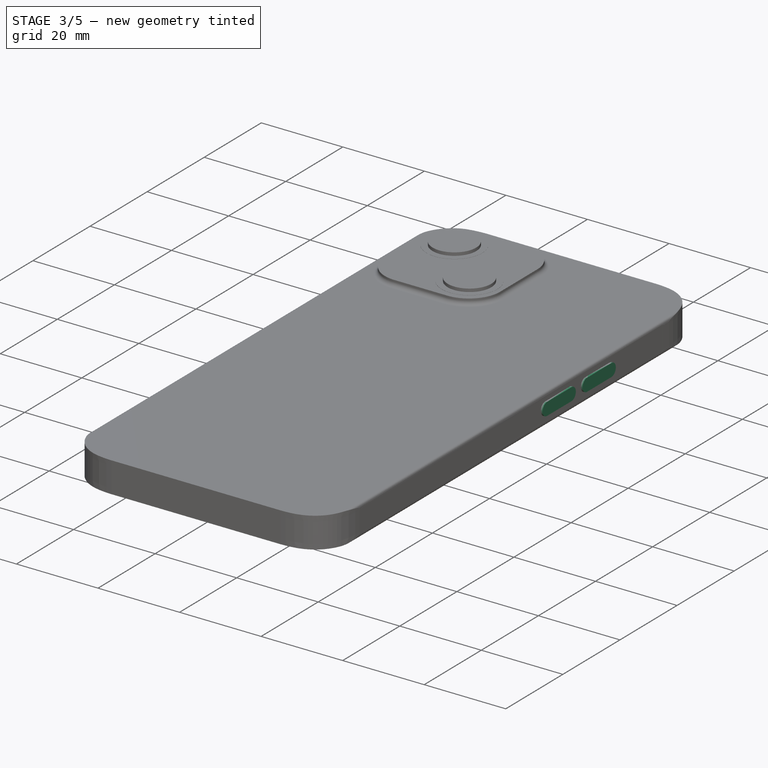
[diagram: stage 3 of 5 — iso view after this stage's code; geometry added in this stage tinted green]
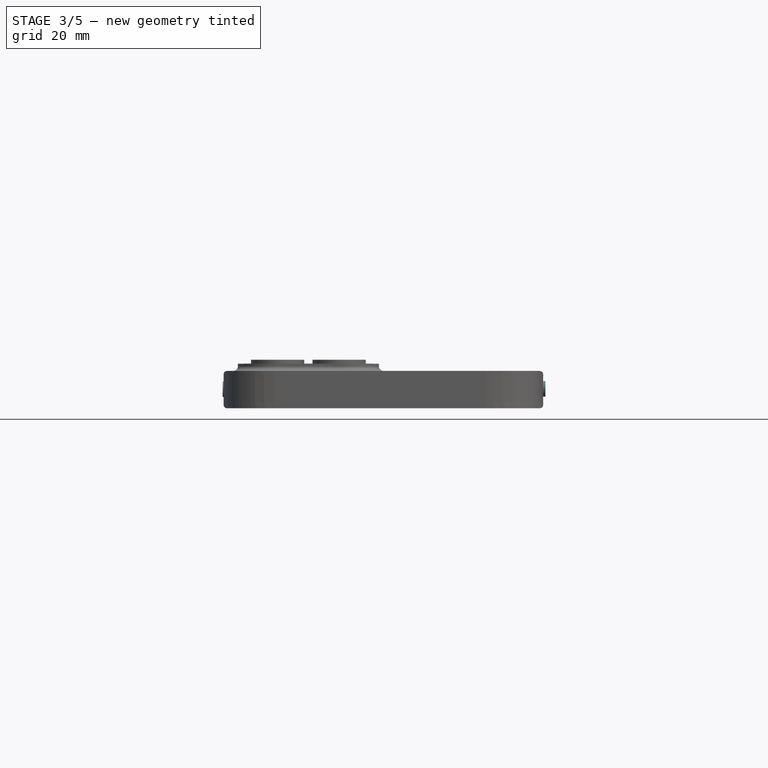
[diagram: stage 3 of 5 — front view after this stage's code; geometry added in this stage tinted green]
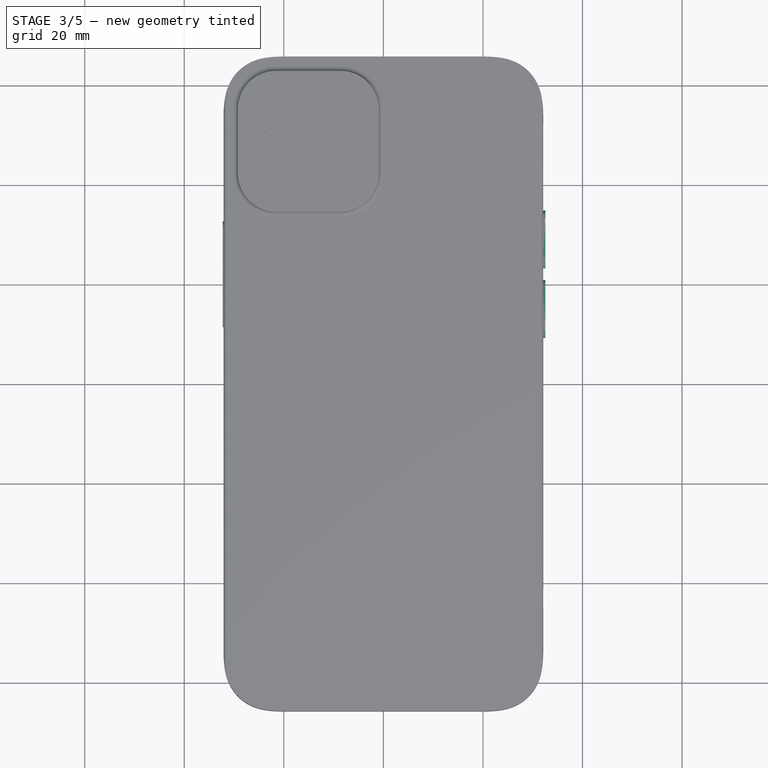
[diagram: stage 3 of 5 — top view after this stage's code; geometry added in this stage tinted green]
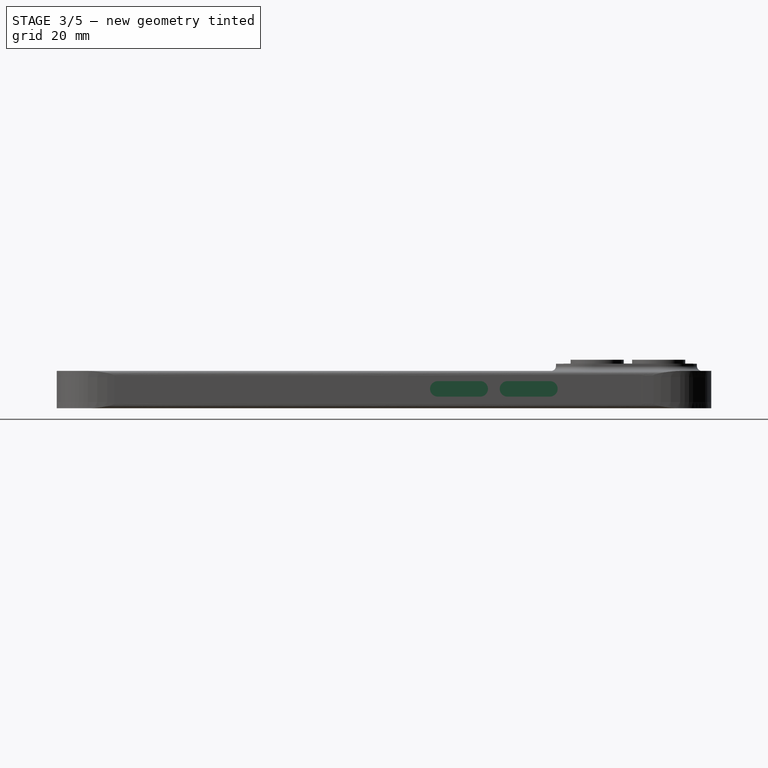
[diagram: stage 3 of 5 — right view after this stage's code; geometry added in this stage tinted green]
FEATURE [PartDesign::Fillet] Fillet001  label="CameraBayFillet"
  Base = -> Boolean001 [Edge10]
  BaseFeature = -> Boolean001
  Radius = 1
  Refine = true
  SupportTransform = false
  Suppressed = false
  UseAllEdges = false
FEATURE [Sketcher::SketchObject] Sketch035  label="SideButton001"
  ArcFitTolerance = 1e-06
  AttachmentOffset = pos=(0,0,-32.3) rot=(0,0,1;0rad)
  AttachmentSupport = -> [Origin006]
  ExternalTypes = [0]
  FullyConstrained = true
  MakeInternals = false
  MapMode = 5
  Placement = pos=(-32.3,0,0) rot=(0.57735,0.57735,0.57735;2.0944rad)
  expr: Constraints[7] = 7.65 / 2
  sketch-geometry (9):
    g0: ArcOfCircle CenterX=31.14 CenterY=3.825 CenterZ=0 NormalX=0 NormalY=0 NormalZ=1 AngleXU=0 Radius=1.555 StartAngle=4.71239 EndAngle=7.85398
    g1: ArcOfCircle CenterX=13 CenterY=3.825 CenterZ=0 NormalX=0 NormalY=0 NormalZ=1 AngleXU=0 Radius=1.555 StartAngle=1.5708 EndAngle=4.71239
    g2: LineSegment StartX=31.14 StartY=2.27 StartZ=0 EndX=13 EndY=2.27 EndZ=0
    g3: LineSegment StartX=31.14 StartY=5.38 StartZ=0 EndX=13 EndY=5.38 EndZ=0
    g4: GeomPoint [constr] X=22.07 Y=3.825 Z=0
    g5: LineSegment [constr] StartX=31.14 StartY=3.825 StartZ=0 EndX=13 EndY=3.825 EndZ=0
    g6: GeomPoint [constr] X=22.07 Y=3.825 Z=0
    g7: LineSegment [constr] StartX=13 StartY=3.825 StartZ=0 EndX=11.445 EndY=3.825 EndZ=0
    g8: LineSegment [constr] StartX=31.14 StartY=3.825 StartZ=0 EndX=29.585 EndY=3.825 EndZ=0
  constraints (20):
    c: Tangent(g0,g2) = 1.5708
    c: Tangent(g0,g3) = -1.5708
    c: Tangent(g1,g2) = 1.5708
    c: Tangent(g1,g3) = -1.5708
    c: Equal(g0,g1)
    c: Horizontal(g2)
    c: Distance(g4,g-3) = 43.68
    c: Distance(g4,g-1) = 3.825
    c: Distance(g0,g0) = 3.11
    c: Coincident(g5,g0)
    c: Coincident(g5,g1)
    c: Symmetric(g5,g5,g6)
    c: Coincident(g6,g4)
    c: Coincident(g7,g1)
    c: PointOnObject(g7,g1)
    c: Horizontal(g7)
    c: Coincident(g8,g0)
    c: PointOnObject(g8,g0)
    c: Horizontal(g8)
    c: DistanceX(g7,g8) = 18.14
FEATURE [PartDesign::Pad] Pad015  label="SideButtonPad"
  BaseFeature = -> Fillet001
  Direction = (1,0,0)
  Length = 0.45
  Length2 = 10
  Profile = -> Sketch035
  ReferenceAxis = -> Sketch035 [N_Axis]
  Refine = true
  SideType = 0
  Suppressed = false
  Type = 0
  Type2 = 0
FEATURE [Sketcher::SketchObject] Sketch036  label="VolumeButtonSketch001"
  ArcFitTolerance = 1e-06
  AttachmentOffset = pos=(0,0,32.1) rot=(0,0,1;0rad)
  AttachmentSupport = -> [YZ_Plane004,Origin006]
  ExternalTypes = [0,0,0]
  FullyConstrained = true
  MakeInternals = false
  MapMode = 5
  Placement = pos=(32.1,0,0) rot=(0.57735,0.57735,0.57735;2.0944rad)
  expr: .AttachmentOffset.Base.x = 0
  sketch-geometry (16):
    g0: ArcOfCircle CenterX=10.805 CenterY=3.9 CenterZ=0 NormalX=0 NormalY=0 NormalZ=1 AngleXU=0 Radius=1.555 StartAngle=1.5708 EndAngle=4.71239
    g1: ArcOfCircle CenterX=19.335 CenterY=3.9 CenterZ=0 NormalX=0 NormalY=0 NormalZ=1 AngleXU=0 Radius=1.555 StartAngle=4.71239 EndAngle=7.85398
    g2: LineSegment StartX=10.805 StartY=5.455 StartZ=0 EndX=19.335 EndY=5.455 EndZ=0
    g3: LineSegment StartX=10.805 StartY=2.345 StartZ=0 EndX=19.335 EndY=2.345 EndZ=0
    g4: LineSegment [constr] StartX=10.805 StartY=3.9 StartZ=0 EndX=19.335 EndY=3.9 EndZ=0
    g5: LineSegment [constr] StartX=10.805 StartY=3.9 StartZ=0 EndX=9.25 EndY=3.9 EndZ=0
    g6: LineSegment [constr] StartX=19.335 StartY=3.9 StartZ=0 EndX=20.89 EndY=3.9 EndZ=0
    g7: GeomPoint [constr] X=15.07 Y=3.9 Z=0
    g8: ArcOfCircle CenterX=24.805 CenterY=3.9 CenterZ=0 NormalX=0 NormalY=0 NormalZ=1 AngleXU=0 Radius=1.555 StartAngle=1.5708 EndAngle=4.71239
    g9: ArcOfCircle CenterX=33.335 CenterY=3.9 CenterZ=0 NormalX=0 NormalY=0 NormalZ=1 AngleXU=0 Radius=1.555 StartAngle=4.71239 EndAngle=7.85398
    g10: LineSegment StartX=24.805 StartY=5.455 StartZ=0 EndX=33.335 EndY=5.455 EndZ=0
    g11: LineSegment StartX=24.805 StartY=2.345 StartZ=0 EndX=33.335 EndY=2.345 EndZ=0
    g12: LineSegment [constr] StartX=24.805 StartY=3.9 StartZ=0 EndX=33.335 EndY=3.9 EndZ=0
    g13: LineSegment [constr] StartX=24.805 StartY=3.9 StartZ=0 EndX=23.25 EndY=3.9 EndZ=0
    g14: LineSegment [constr] StartX=33.335 StartY=3.9 StartZ=0 EndX=34.89 EndY=3.9 EndZ=0
    g15: GeomPoint [constr] X=29.07 Y=3.9 Z=0
  constraints (38):
    c: Tangent(g0,g2) = 1.5708
    c: Tangent(g0,g3) = -1.5708
    c: Tangent(g1,g2) = 1.5708
    c: Tangent(g1,g3) = -1.5708
    c: Equal(g0,g1)
    c: Horizontal(g2)
    c: Coincident(g4,g0)
    c: Coincident(g4,g1)
    c: Coincident(g5,g0)
    c: PointOnObject(g5,g0)
    c: Horizontal(g5)
    c: Coincident(g6,g1)
    c: PointOnObject(g6,g1)
    c: Horizontal(g6)
    c: Symmetric(g4,g4,g7)
    c: DistanceX(g7,g6) = 5.82
    c: Distance(g3,g2) = 3.11
    c: Distance(g7,g-3) = 3.75
    c: Tangent(g8,g10) = 1.5708
    c: Tangent(g8,g11) = -1.5708
    c: Tangent(g9,g10) = 1.5708
    c: Tangent(g9,g11) = -1.5708
    c: Equal(g8,g9)
    c: Horizontal(g10)
    c: Coincident(g12,g8)
    c: Coincident(g12,g9)
    c: Coincident(g13,g8)
    c: PointOnObject(g13,g8)
    c: Horizontal(g13)
    c: Coincident(g14,g9)
    c: PointOnObject(g14,g9)
    c: Horizontal(g14)
    c: Symmetric(g12,g12,g15)
    c: DistanceX(g15,g14) = 5.82
    c: Distance(g11,g10) = 3.11
    c: Distance(g15,g-5) = 36.68
    c: Distance(g7,g-5) = 50.68
    c: Distance(g-3,g12) = 3.75
FEATURE [Sketcher::SketchObject] Sketch037  label="RingSwitchSlot001"
  ArcFitTolerance = 1e-06
  AttachmentOffset = pos=(0,0,32.1) rot=(0,0,1;0rad)
  AttachmentSupport = -> [Origin006]
  ExternalTypes = [0,0,0]
  FullyConstrained = true
  MakeInternals = false
  MapMode = 5
  Placement = pos=(32.1,0,0) rot=(0.57735,0.57735,0.57735;2.0944rad)
  sketch-geometry (12):
    g0: LineSegment StartX=39.53 StartY=4.075 StartZ=0 EndX=39.53 EndY=3.725 EndZ=0
    g1: LineSegment StartX=40.43 StartY=2.825 StartZ=0 EndX=44.33 EndY=2.825 EndZ=0
    g2: LineSegment StartX=45.23 StartY=3.725 StartZ=0 EndX=45.23 EndY=4.075 EndZ=0
    g3: LineSegment StartX=44.33 StartY=4.975 StartZ=0 EndX=40.43 EndY=4.975 EndZ=0
    g4: ArcOfCircle CenterX=40.43 CenterY=4.075 CenterZ=0 NormalX=0 NormalY=0 NormalZ=1 AngleXU=0 Radius=0.9 StartAngle=1.5708 EndAngle=3.14159
    g5: ArcOfCircle CenterX=40.43 CenterY=3.725 CenterZ=0 NormalX=0 NormalY=0 NormalZ=1 AngleXU=0 Radius=0.9 StartAngle=3.14159 EndAngle=4.71239
    g6: ArcOfCircle CenterX=44.33 CenterY=3.725 CenterZ=0 NormalX=0 NormalY=0 NormalZ=1 AngleXU=0 Radius=0.9 StartAngle=4.71239 EndAngle=6.28319
    g7: ArcOfCircle CenterX=44.33 CenterY=4.075 CenterZ=0 NormalX=0 NormalY=0 NormalZ=1 AngleXU=0 Radius=0.9 StartAngle=0 EndAngle=1.5708
    g8: GeomPoint [constr] X=39.53 Y=4.975 Z=0
    g9: GeomPoint [constr] X=45.23 Y=2.825 Z=0
    g10: LineSegment [constr] StartX=39.53 StartY=3.9 StartZ=0 EndX=45.23 EndY=3.9 EndZ=0
    g11: GeomPoint [constr] X=42.38 Y=3.9 Z=0
  constraints (27):
    c: Tangent(g0,g4) = -1.5708
    c: Tangent(g0,g5) = -1.5708
    c: Tangent(g1,g5) = -1.5708
    c: Tangent(g1,g6) = -1.5708
    c: Tangent(g2,g6) = -1.5708
    c: Tangent(g2,g7) = -1.5708
    c: Tangent(g3,g7) = -1.5708
    c: Tangent(g3,g4) = -1.5708
    c: Vertical(g0)
    c: Vertical(g2)
    c: Horizontal(g1)
    c: Horizontal(g3)
    c: Equal(g4,g5)
    c: Equal(g5,g6)
    c: Equal(g6,g7)
    c: PointOnObject(g8,g0)
    c: PointOnObject(g8,g3)
    c: PointOnObject(g9,g1)
    c: PointOnObject(g9,g2)
    c: Distance(g0,g2) = 5.7
    c: Distance(g1,g3) = 2.15
    c: Radius(g5) = 0.9
    c: Symmetric(g0,g0,g10)
    c: Symmetric(g2,g2,g10)
    c: Symmetric(g10,g10,g11)
    c: Distance(g11,g-4) = 23.37
    c: Distance(g-3,g10) = 3.75
FEATURE [Sketcher::SketchObject] Sketch038  label="RingSwitch002"
  ArcFitTolerance = 1e-06
  AttachmentOffset = pos=(0,0,32.1) rot=(0,0,1;0rad)
  AttachmentSupport = -> [YZ_Plane003]
  ExternalTypes = [0,0,0,0,0,0,0,0]
  FullyConstrained = true
  MakeInternals = false
  MapMode = 5
  Placement = pos=(32.1,0,0) rot=(0.57735,0.57735,0.57735;2.0944rad)
  sketch-geometry (5):
    g0: LineSegment [constr] StartX=39.53 StartY=3.9 StartZ=0 EndX=45.23 EndY=3.9 EndZ=0
    g1: ArcOfCircle CenterX=40.43 CenterY=3.3625 CenterZ=0 NormalX=0 NormalY=0 NormalZ=1 AngleXU=0 Radius=0.5375 StartAngle=1.5708 EndAngle=4.71239
    g2: ArcOfCircle CenterX=44.33 CenterY=3.3625 CenterZ=0 NormalX=0 NormalY=0 NormalZ=1 AngleXU=0 Radius=0.5375 StartAngle=4.71239 EndAngle=7.85398
    g3: LineSegment StartX=40.43 StartY=3.9 StartZ=0 EndX=44.33 EndY=3.9 EndZ=0
    g4: LineSegment StartX=40.43 StartY=2.825 StartZ=0 EndX=44.33 EndY=2.825 EndZ=0
  constraints (10):
    c: Symmetric(g-9,g-9,g0)
    c: Symmetric(g-10,g-10,g0)
    c: Tangent(g1,g3) = 1.5708
    c: Tangent(g1,g4) = -1.5708
    c: Tangent(g2,g3) = 1.5708
    c: Tangent(g2,g4) = -1.5708
    c: Equal(g1,g2)
    c: Coincident(g1,g-5)
    c: PointOnObject(g2,g0)
    c: Coincident(g2,g-4)
FEATURE [Sketcher::SketchObject] Sketch039  label="SimTraySketch001"
  ArcFitTolerance = 1e-06
  AttachmentOffset = pos=(0,0,32.1) rot=(0,0,1;0rad)
  ExternalTypes = [0,0,0]
  FullyConstrained = true
  MakeInternals = false
  MapMode = 5
  Placement = pos=(32.1,0,0) rot=(0.57735,0.57735,0.57735;2.0944rad)
  sketch-geometry (9):
    g0: ArcOfCircle CenterX=-38.915 CenterY=3.83 CenterZ=0 NormalX=0 NormalY=0 NormalZ=1 AngleXU=0 Radius=1.18 StartAngle=1.5708 EndAngle=4.71239
    g1: ArcOfCircle CenterX=-25.245 CenterY=3.83 CenterZ=0 NormalX=0 NormalY=0 NormalZ=1 AngleXU=0 Radius=1.18 StartAngle=4.71239 EndAngle=7.85398
    g2: LineSegment StartX=-38.915 StartY=5.01 StartZ=0 EndX=-25.245 EndY=5.01 EndZ=0
    g3: LineSegment StartX=-38.915 StartY=2.65 StartZ=0 EndX=-25.245 EndY=2.65 EndZ=0
    g4: LineSegment [constr] StartX=-38.915 StartY=3.83 StartZ=0 EndX=-40.095 EndY=3.83 EndZ=0
    g5: LineSegment [constr] StartX=-38.915 StartY=3.83 StartZ=0 EndX=-25.245 EndY=3.83 EndZ=0
    g6: LineSegment [constr] StartX=-25.245 StartY=3.83 StartZ=0 EndX=-24.065 EndY=3.83 EndZ=0
    g7: GeomPoint [constr] X=-32.08 Y=3.83 Z=0
    g8: Circle CenterX=-38.915 CenterY=3.83 CenterZ=0 NormalX=0 NormalY=0 NormalZ=1 AngleXU=0 Radius=0.84
  constraints (21):
    c: Tangent(g0,g2) = 1.5708
    c: Tangent(g0,g3) = -1.5708
    c: Tangent(g1,g2) = 1.5708
    c: Tangent(g1,g3) = -1.5708
    c: Equal(g0,g1)
    c: Horizontal(g2)
    c: Coincident(g4,g0)
    c: PointOnObject(g4,g0)
    c: Horizontal(g4)
    c: Coincident(g5,g0)
    c: Coincident(g5,g1)
    c: Coincident(g6,g1)
    c: PointOnObject(g6,g1)
    c: Horizontal(g6)
    c: DistanceX(g4,g6) = 16.03
    c: Distance(g-4,g5) = 3.82
    c: Symmetric(g5,g5,g7)
    c: Distance(g7,g-5) = 97.83
    c: Distance(g3,g2) = 2.36
    c: Coincident(g8,g0)
    c: Diameter(g8) = 1.68
FEATURE [PartDesign::Pad] Pad016  label="VolumeButtonPad"
  BaseFeature = -> Pad015
  Direction = (1,0,0)
  Length = 0.45
  Length2 = 10
  Profile = -> Sketch036
  ReferenceAxis = -> Sketch036 [N_Axis]
  Refine = true
  SideType = 0
  Suppressed = false
  Type = 0
  Type2 = 0
FEATURE [PartDesign::Pocket] Pocket001  label="RingSwitchPocket001"
  BaseFeature = -> Pad016
  Direction = (-1,0,0)
  Length = 1
  Length2 = 5
  Profile = -> Sketch037
  ReferenceAxis = -> Sketch037 [N_Axis]
  Refine = true
  SideType = 0
  Suppressed = false
  Type = 0
  Type2 = 0
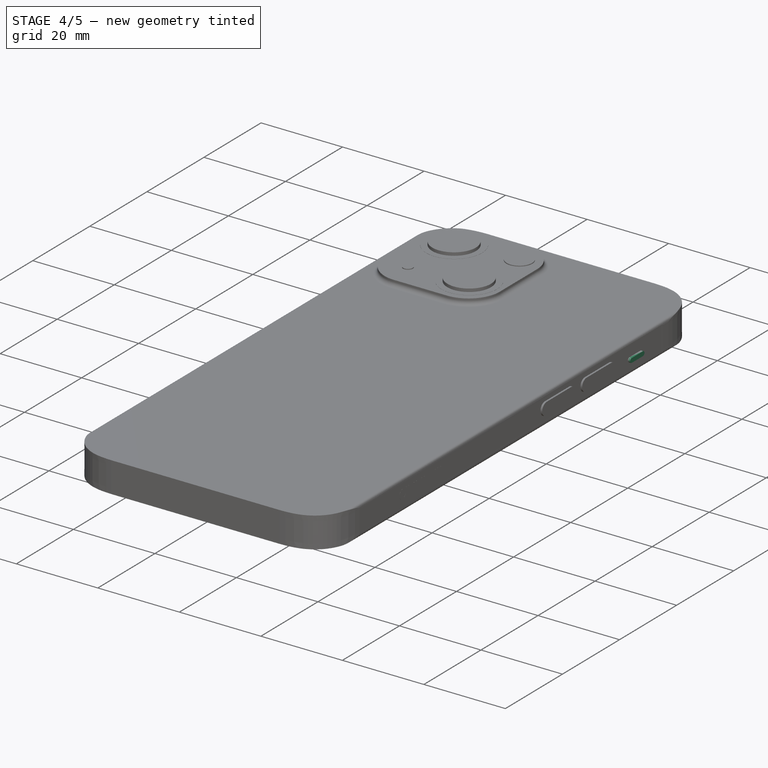
[diagram: stage 4 of 5 — iso view after this stage's code; geometry added in this stage tinted green]
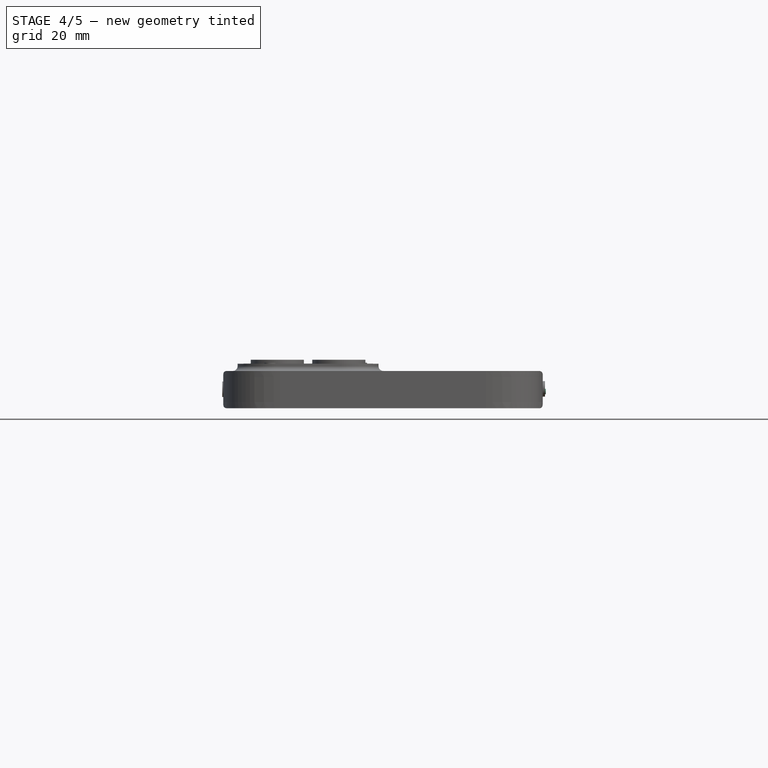
[diagram: stage 4 of 5 — front view after this stage's code; geometry added in this stage tinted green]
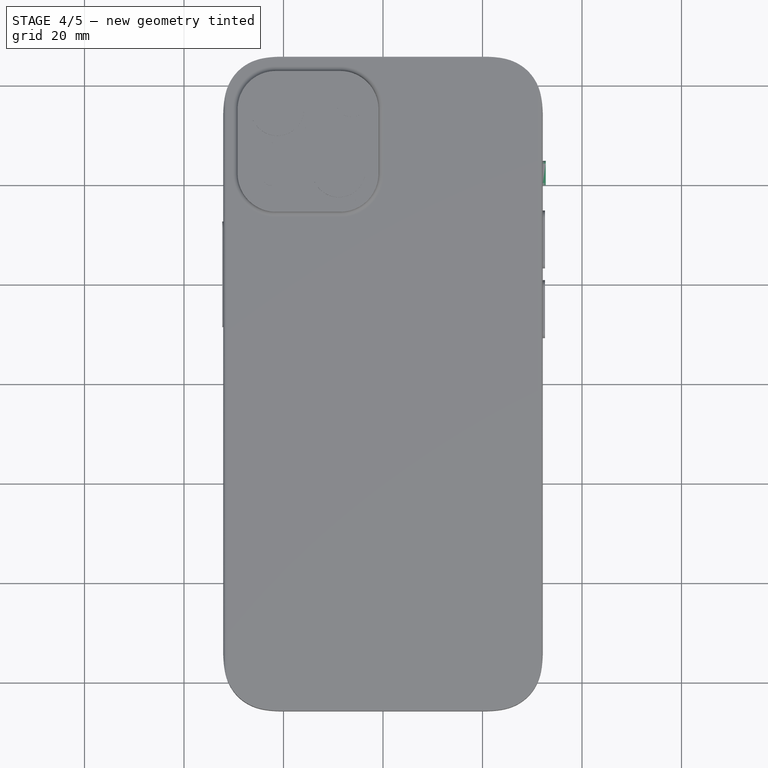
[diagram: stage 4 of 5 — top view after this stage's code; geometry added in this stage tinted green]
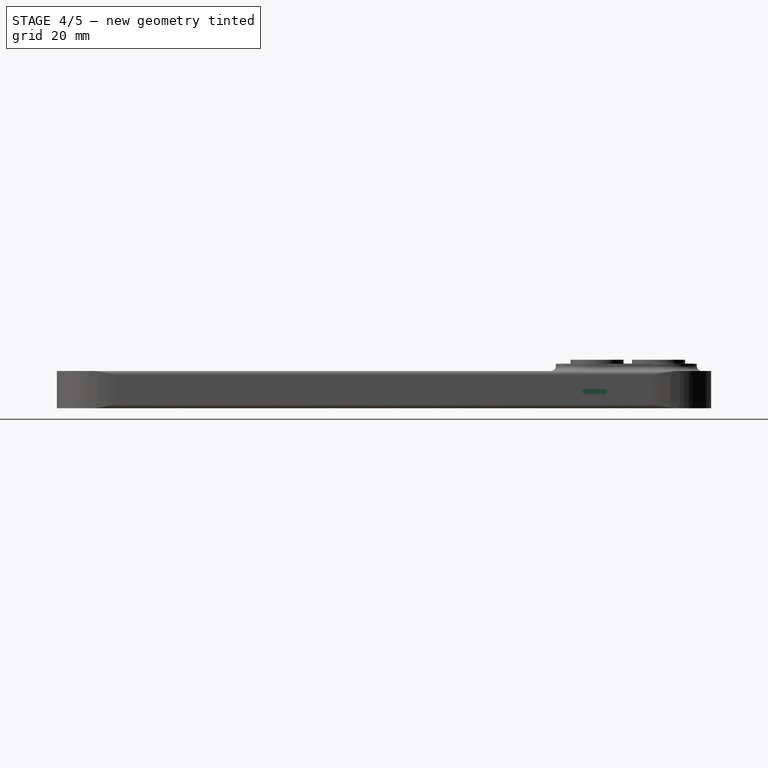
[diagram: stage 4 of 5 — right view after this stage's code; geometry added in this stage tinted green]
FEATURE [PartDesign::Pad] Pad017  label="RingSwitchPad"
  BaseFeature = -> Pocket001
  Direction = (1,0,0)
  Length = 0.6
  Length2 = 10
  Profile = -> Sketch038
  ReferenceAxis = -> Sketch038 [N_Axis]
  Refine = true
  SideType = 0
  Suppressed = false
  Type = 0
  Type2 = 0
FEATURE [PartDesign::Pad] Pad018  label="SimSlotLightPad"
  BaseFeature = -> Pad017
  Direction = (1,1e-16,-1e-16)
  Length = 0.01
  Length2 = 10
  Profile = -> Sketch039
  ReferenceAxis = -> Sketch039 [N_Axis]
  Refine = true
  SideType = 0
  Suppressed = false
  Type = 0
  Type2 = 0
FEATURE [Sketcher::SketchObject] Sketch040  label="CameraBayAccompanimentsSketch001"
  ArcFitTolerance = 1e-06
  AttachmentSupport = -> [XY_Plane003]
  ExternalTypes = [0,0]
  FullyConstrained = true
  MakeInternals = false
  MapMode = 5
FEATURE [PartDesign::Pad] Pad019  label="CameraAccompaniments"
  BaseFeature = -> Pad018
  Direction = (0,0,1)
  Length = 9.14
  Length2 = 10
  Profile = -> Sketch040
  ReferenceAxis = -> Sketch040 [N_Axis]
  Refine = true
  SideType = 0
  Suppressed = false
  Type = 0
  Type2 = 0
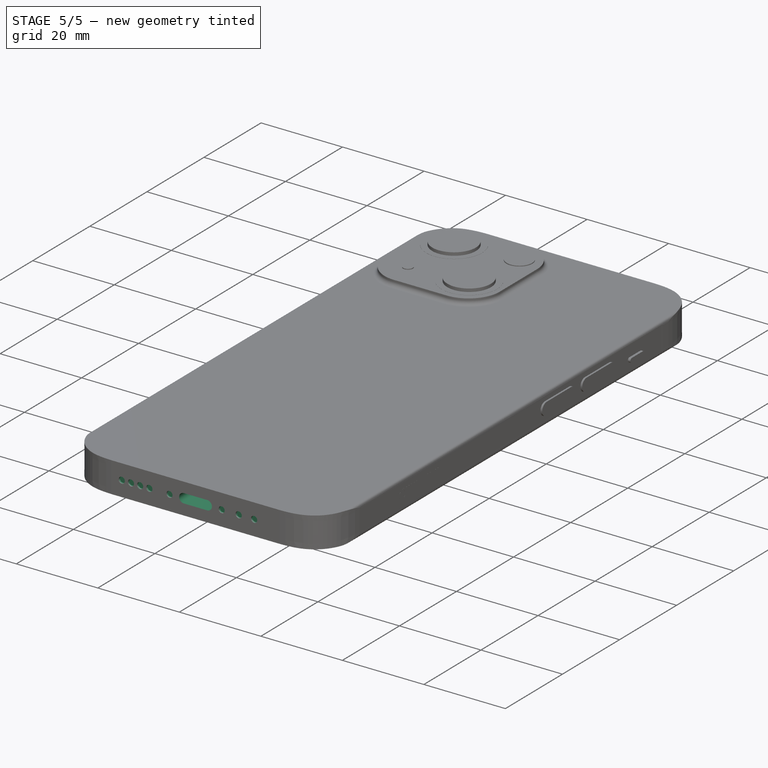
[diagram: stage 5 of 5 — iso view after this stage's code; geometry added in this stage tinted green]
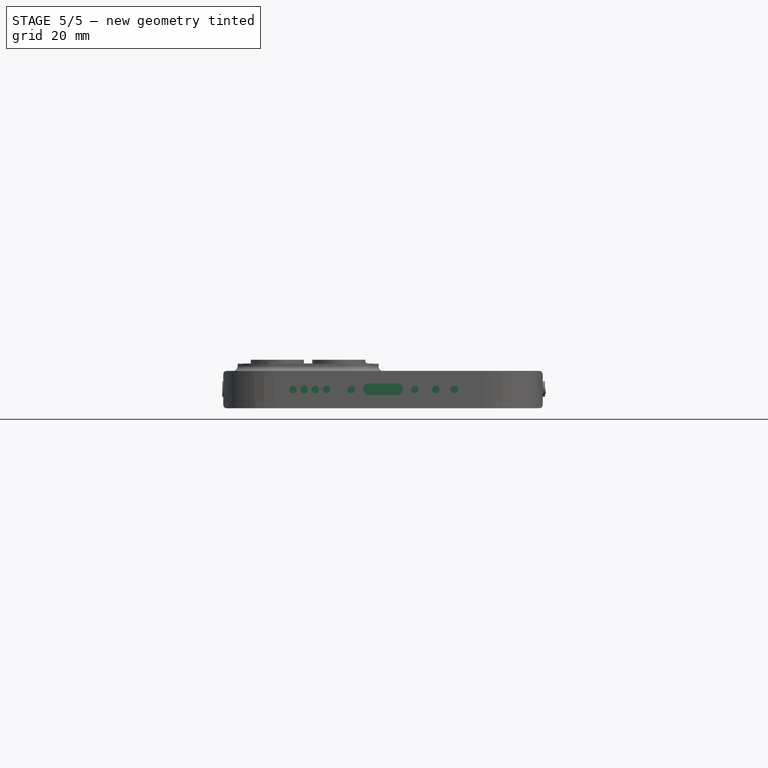
[diagram: stage 5 of 5 — front view after this stage's code; geometry added in this stage tinted green]
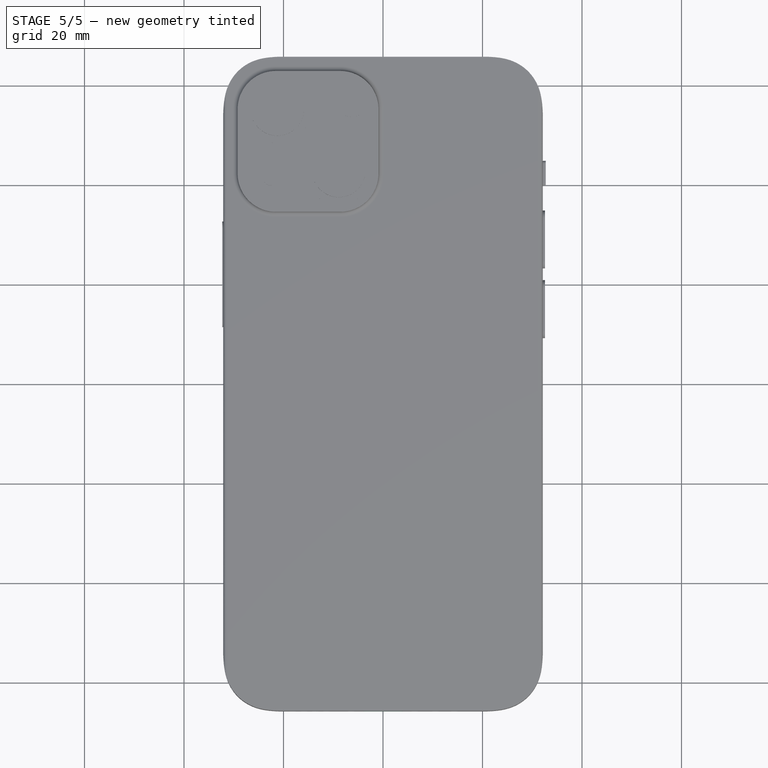
[diagram: stage 5 of 5 — top view after this stage's code; geometry added in this stage tinted green]
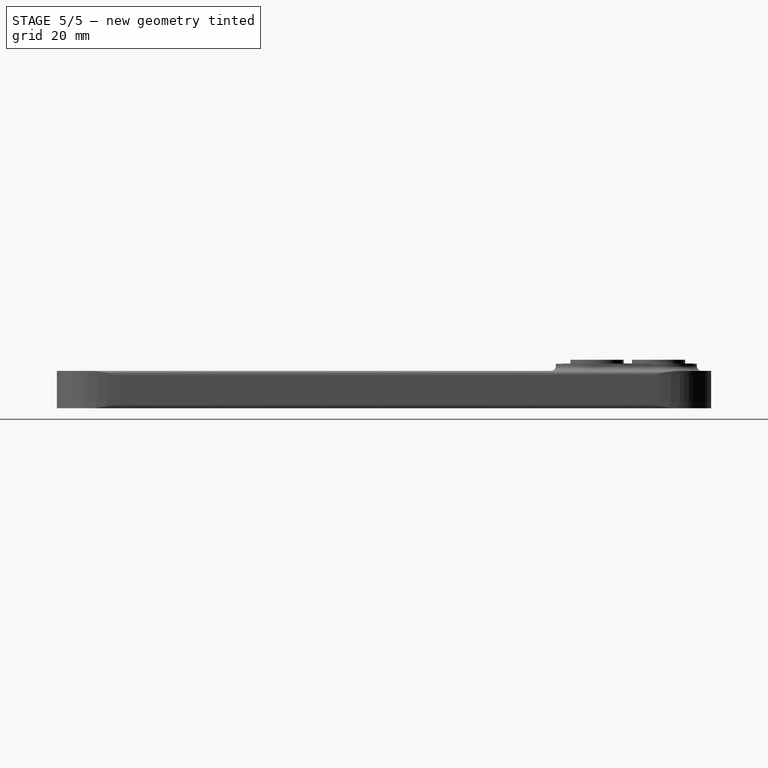
[diagram: stage 5 of 5 — right view after this stage's code; geometry added in this stage tinted green]
FEATURE [Sketcher::SketchObject] Sketch041  label="BottomHolesSketch"
  ArcFitTolerance = 1e-06
  AttachmentOffset = pos=(32.105,3.75,0) rot=(0,0,1;3.14159rad)
  AttachmentSupport = -> [Pad019]
  ExternalTypes = [0]
  FullyConstrained = true
  MakeInternals = false
  MapMode = 5
  Placement = pos=(32.105,-65.75,3.75) rot=(0,-0.707107,0.707107;3.14159rad)
  expr: .AttachmentOffset.Base.x = 64.21 / 2
  sketch-geometry (8):
    g0: Circle CenterX=50.22 CenterY=0 CenterZ=0 NormalX=0 NormalY=0 NormalZ=1 AngleXU=0 Radius=0.765
    g1: Circle CenterX=47.96 CenterY=0 CenterZ=0 NormalX=0 NormalY=0 NormalZ=1 AngleXU=0 Radius=0.765
    g2: Circle CenterX=45.71 CenterY=0 CenterZ=0 NormalX=0 NormalY=0 NormalZ=1 AngleXU=0 Radius=0.765
    g3: Circle CenterX=17.74 CenterY=0 CenterZ=0 NormalX=0 NormalY=0 NormalZ=1 AngleXU=0 Radius=0.765
    g4: Circle CenterX=38.5 CenterY=0 CenterZ=0 NormalX=0 NormalY=0 NormalZ=1 AngleXU=0 Radius=0.75
    g5: Circle CenterX=25.71 CenterY=0 CenterZ=0 NormalX=0 NormalY=0 NormalZ=1 AngleXU=0 Radius=0.75
    g6: Circle CenterX=43.45 CenterY=0 CenterZ=0 NormalX=0 NormalY=0 NormalZ=1 AngleXU=0 Radius=0.765
    g7: Circle CenterX=21.53 CenterY=0 CenterZ=0 NormalX=0 NormalY=0 NormalZ=1 AngleXU=0 Radius=0.765
  constraints (24):
    c: Diameter(g0) = 1.53
    c: DistanceX(g-1,g0) = 50.22  'Mic2'
    c: PointOnObject(g0,g-1)
    c: Diameter(g1) = 1.53
    c: DistanceX(g-1,g1) = 47.96
    c: PointOnObject(g1,g-1)
    c: Diameter(g2) = 1.53
    c: DistanceX(g-1,g2) = 45.71
    c: PointOnObject(g2,g-1)
    c: Diameter(g3) = 1.53
    c: DistanceX(g-1,g3) = 17.74  'Mic1'
    c: PointOnObject(g3,g-1)
    c: Diameter(g4) = 1.5
    c: PointOnObject(g4,g-1)
    c: DistanceX(g-1,g4) = 38.5  'Screw2'
    c: Diameter(g5) = 1.5
    c: PointOnObject(g5,g-1)
    c: DistanceX(g-1,g5) = 25.71  'Screw1'
    c: Diameter(g6) = 1.53
    c: DistanceX(g-1,g6) = 43.45
    c: PointOnObject(g6,g-1)
    c: Diameter(g7) = 1.53
    c: DistanceX(g-1,g7) = 21.53
    c: PointOnObject(g7,g-1)
FEATURE [PartDesign::Pocket] Pocket002  label="BottomHoles"
  BaseFeature = -> Pad019
  Direction = (0,1,-2.78e-14)
  Length = 0.5
  Length2 = 5
  Profile = -> Sketch041
  ReferenceAxis = -> Sketch041 [N_Axis]
  Refine = true
  SideType = 0
  Suppressed = false
  Type = 0
  Type2 = 0
FEATURE [Sketcher::SketchObject] Sketch042  label="ChargerKeepOut"
  ArcFitTolerance = 1e-06
  AttachmentSupport = -> [Pocket002]
  ExternalTypes = [0]
  FullyConstrained = true
  MakeInternals = false
  MapMode = 5
  Placement = pos=(0,-65.75,1.8265e-12) rot=(1,0,0;1.5708rad)
  sketch-geometry (7):
    g0: ArcOfCircle CenterX=-3.425 CenterY=3.82 CenterZ=0 NormalX=0 NormalY=0 NormalZ=1 AngleXU=0 Radius=3.4 StartAngle=1.5708 EndAngle=4.71239
    g1: ArcOfCircle CenterX=3.425 CenterY=3.82 CenterZ=0 NormalX=0 NormalY=0 NormalZ=1 AngleXU=0 Radius=3.4 StartAngle=4.71239 EndAngle=7.85398
    g2: LineSegment StartX=-3.425 StartY=7.22 StartZ=0 EndX=3.425 EndY=7.22 EndZ=0
    g3: LineSegment StartX=-3.425 StartY=0.42 StartZ=0 EndX=3.425 EndY=0.42 EndZ=0
    g4: LineSegment [constr] StartX=-3.425 StartY=3.82 StartZ=0 EndX=3.425 EndY=3.82 EndZ=0
    g5: LineSegment [constr] StartX=-3.425 StartY=3.82 StartZ=0 EndX=-6.825 EndY=3.82 EndZ=0
    g6: LineSegment [constr] StartX=3.425 StartY=3.82 StartZ=0 EndX=6.825 EndY=3.82 EndZ=0
  constraints (17):
    c: Tangent(g0,g2) = 1.5708
    c: Tangent(g0,g3) = -1.5708
    c: Tangent(g1,g2) = 1.5708
    c: Tangent(g1,g3) = -1.5708
    c: Equal(g0,g1)
    c: Radius(g0) = 3.4
    c: Coincident(g4,g0)
    c: Coincident(g4,g1)
    c: Coincident(g5,g0)
    c: Horizontal(g5)
    c: Coincident(g6,g1)
    c: Horizontal(g6)
    c: DistanceX(g5,g6) = 13.65
    c: Symmetric(g0,g1,g-2)
    c: Distance(g-1,g4) = 3.82
    c: PointOnObject(g5,g0)
    c: PointOnObject(g6,g1)
FEATURE [Sketcher::SketchObject] Sketch043  label="ChargerPort"
  ArcFitTolerance = 1e-06
  AttachmentOffset = pos=(0,3.82,0) rot=(0,0,1;0rad)
  AttachmentSupport = -> [Pocket002]
  ExternalTypes = [0]
  FullyConstrained = true
  MakeInternals = false
  MapMode = 5
  Placement = pos=(0,-65.75,3.82) rot=(1,0,0;1.5708rad)
  sketch-geometry (7):
    g0: ArcOfCircle CenterX=-2.87 CenterY=1e-16 CenterZ=0 NormalX=0 NormalY=0 NormalZ=1 AngleXU=0 Radius=1.15 StartAngle=1.5708 EndAngle=4.71239
    g1: ArcOfCircle CenterX=2.87 CenterY=1e-16 CenterZ=0 NormalX=0 NormalY=0 NormalZ=1 AngleXU=0 Radius=1.15 StartAngle=4.71239 EndAngle=7.85398
    g2: LineSegment StartX=-2.87 StartY=1.15 StartZ=0 EndX=2.87 EndY=1.15 EndZ=0
    g3: LineSegment StartX=-2.87 StartY=-1.15 StartZ=0 EndX=2.87 EndY=-1.15 EndZ=0
    g4: LineSegment [constr] StartX=-2.87 StartY=1e-16 StartZ=0 EndX=2.87 EndY=1e-16 EndZ=0
    g5: LineSegment [constr] StartX=2.87 StartY=1e-16 StartZ=0 EndX=4.02 EndY=1e-16 EndZ=0
    g6: LineSegment [constr] StartX=-2.87 StartY=1e-16 StartZ=0 EndX=-4.02 EndY=1e-16 EndZ=0
  constraints (17):
    c: Tangent(g0,g2) = 1.5708
    c: Tangent(g0,g3) = -1.5708
    c: Tangent(g1,g2) = 1.5708
    c: Tangent(g1,g3) = -1.5708
    c: Equal(g0,g1)
    c: Distance(g3,g2) = 2.3
    c: Coincident(g4,g0)
    c: Coincident(g4,g1)
    c: Coincident(g5,g1)
    c: PointOnObject(g5,g1)
    c: Horizontal(g5)
    c: Coincident(g6,g0)
    c: PointOnObject(g6,g0)
    c: Horizontal(g6)
    c: DistanceX(g6,g5) = 8.04
    c: Symmetric(g0,g1,g-2)
    c: Symmetric(g0,g0,g-1)
FEATURE [PartDesign::Pocket] Pocket003  label="ChargerHole"
  BaseFeature = -> Pocket002
  Direction = (0,1,-2.78e-14)
  Length = 5
  Length2 = 5
  Profile = -> Sketch043
  ReferenceAxis = -> Sketch043 [N_Axis]
  Refine = true
  SideType = 0
  Suppressed = false
  Type = 0
  Type2 = 0
FEATURE [PartDesign::SubShapeBinder] Binder  label="ScreenBinder"
  BindCopyOnChange = 0
  BindMode = 0
  ClaimChildren = false
  Context = -> Body002 [Binder.]
  Fuse = false
  MakeFace = true
  OffsetFill = false
  OffsetIntersection = false
  OffsetJoinType = 0
  OffsetOpenResult = false
  PartialLoad = false
  Refine = true
  Relative = true
  Support = -> [Sketch026]
  _Version = 2
FEATURE [Sketcher::SketchObject] Sketch044  label="ScreenQuickSketch"
  ArcFitTolerance = 1e-06
  AttachmentOffset = pos=(0,0,0) rot=(0,0,1;6.28318rad)
  AttachmentSupport = -> [Binder]
  ExternalGeometry = -> [Binder]
  ExternalTypes = [0]
  FullyConstrained = false
  MakeInternals = false
  MapMode = 5
  Placement = pos=(0,0,0) rot=(0,1,0;3.14159rad)
  expr: Constraints[10] = 6.54 mm / 2
  sketch-geometry (26):
    g0: LineSegment StartX=-28.8212 StartY=48.4091 StartZ=0 EndX=-28.8064 EndY=-48.9338 EndZ=0
    g1: LineSegment StartX=-15.1451 StartY=-62.48 StartZ=0 EndX=16.8182 EndY=-62.48 EndZ=0
    g2: LineSegment StartX=28.84 StartY=-48.8118 StartZ=0 EndX=28.84 EndY=49.4157 EndZ=0
    g3: LineSegment [constr] StartX=16.6023 StartY=62.4716 StartZ=0 EndX=-16.5923 EndY=62.4716 EndZ=0
    g4: GeomPoint [constr] X=-28.8234 Y=62.4716 Z=0
    g5: GeomPoint [constr] X=28.84 Y=-62.48 Z=0
    g6: BSplineCurve PolesCount=9 KnotsCount=7 Degree=3 IsPeriodic=0
    g7: BSplineCurve PolesCount=9 KnotsCount=7 Degree=3 IsPeriodic=0
    g8: LineSegment [constr] StartX=-13.39 StartY=56.7016 StartZ=0 EndX=13.39 EndY=56.7016 EndZ=0
    g9: GeomPoint [constr] X=9.82 Y=56.7016 Z=0
    g10: GeomPoint [constr] X=-9.82 Y=56.7016 Z=0
    g11: LineSegment StartX=-9.82 StartY=56.7016 StartZ=0 EndX=9.82 EndY=56.7016 EndZ=0
    g12: LineSegment [constr] StartX=-9.82 StartY=56.7016 StartZ=0 EndX=-9.82 EndY=60.2716 EndZ=0
    g13: ArcOfCircle CenterX=-9.8056 CenterY=60.2716 CenterZ=0 NormalX=0 NormalY=0 NormalZ=1 AngleXU=0 Radius=3.57 StartAngle=3.13756 EndAngle=4.70835
    g14: GeomPoint [constr] X=-14.2162 Y=62.4716 Z=0
    g15: LineSegment [constr] StartX=-14.2162 StartY=62.4716 StartZ=0 EndX=-14.2162 EndY=60.8269 EndZ=0
    g16: GeomPoint [constr] X=-14.2162 Y=61.6016 Z=0
    g17: ArcOfCircle CenterX=-14.2456 CenterY=61.6083 CenterZ=0 NormalX=0 NormalY=0 NormalZ=1 AngleXU=0 Radius=0.87 StartAngle=6.28311 EndAngle=7.8539
    g18: LineSegment StartX=-13.3756 StartY=61.6082 StartZ=0 EndX=-13.3756 EndY=60.286 EndZ=0
    g19: LineSegment StartX=-14.2455 StartY=62.4783 StartZ=0 EndX=-14.7359 EndY=62.4991 EndZ=0
    g20: ArcOfCircle CenterX=9.8056 CenterY=60.2716 CenterZ=0 NormalX=0 NormalY=0 NormalZ=1 AngleXU=0 Radius=3.57 StartAngle=4.71642 EndAngle=6.28722
    g21: LineSegment StartX=13.3756 StartY=61.6082 StartZ=0 EndX=13.3756 EndY=60.286 EndZ=0
    g22: ArcOfCircle CenterX=14.2456 CenterY=61.6083 CenterZ=0 NormalX=0 NormalY=0 NormalZ=1 AngleXU=0 Radius=0.87 StartAngle=1.57087 EndAngle=3.14167
    g23: LineSegment StartX=14.2455 StartY=62.4783 StartZ=0 EndX=14.7359 EndY=62.4991 EndZ=0
    g24: BSplineCurve PolesCount=9 KnotsCount=7 Degree=3 IsPeriodic=0
    g25: BSplineCurve PolesCount=9 KnotsCount=7 Degree=3 IsPeriodic=0
  constraints (57):
    c: Vertical(g2)
    c: Horizontal(g1)
    c: Horizontal(g3)
    c: PointOnObject(g4,g0)
    c: PointOnObject(g4,g3)
    c: PointOnObject(g5,g1)
    c: PointOnObject(g5,g2)
    c: Distance(g0,g2) = 57.67
    c: Distance(g1,g3) = 124.96
    c: Distance(g-9,g2) = 3.27
    c: Distance(g-3,g1) = 3.27
    c: DistanceX(g-5,g-5) = 0.0200012
    c: Distance(g8) = 26.78
    c: Distance(g3,g8) = 5.77
    c: Symmetric(g8,g8,g-2)
    c: PointOnObject(g9,g8)
    c: Distance(g9,g8) = 3.57
    c: PointOnObject(g10,g8)
    c: DistanceX(g8,g10) = 3.57
    c: Coincident(g11,g10)
    c: Coincident(g11,g9)
    c: Distance(g12) = 3.57
    c: Angle(g-1,g12) = 1.5708
    c: Coincident(g12,g10)
    c: Radius(g13) = 3.57
    c: Angle(g13) = 1.5708
    c: PointOnObject(g14,g3)
    c: Distance(g15) = 1.64473
    c: Angle(g-1,g15) = -1.5708
    c: Coincident(g15,g14)
    c: PointOnObject(g16,g15)
    c: Distance(g16,g14) = 0.87
    c: Radius(g17) = 0.87
    c: Angle(g17) = 1.5708
    c: Coincident(g18,g17)
    c: Coincident(g18,g13)
    c: Vertical(g18)
    c: Coincident(g19,g17)
    c: Coincident(g19,g7)
    c: Radius(g20) = 3.57
    c: Angle(g20) = 1.5708
    c: Radius(g22) = 0.87
    c: Angle(g22) = 1.5708
    c: Coincident(g21,g22)
    c: Coincident(g21,g20)
    c: Vertical(g21)
    c: Coincident(g9,g20)
    c: Coincident(g23,g22)
    c: Coincident(g23,g6)
    c: Coincident(g10,g13)
    c: Coincident(g0,g7)
    c: Coincident(g2,g6)
    c: PointOnObject(g25,g0)
    c: PointOnObject(g0,g25)
    c: PointOnObject(g2,g24)
    c: PointOnObject(g1,g25)
    c: PointOnObject(g1,g24)
FEATURE [PartDesign::Pad] Pad  label="ScreenLightPad"
  BaseFeature = -> Pocket003
  Direction = (0,0,-1)
  Length = 0.01
  Length2 = 10
  Profile = -> Sketch044
  ReferenceAxis = -> Sketch044 [N_Axis]
  Refine = true
  SideType = 0
  Suppressed = false
  Type = 0
  Type2 = 0
FEATURE [Sketcher::SketchObject] Sketch045  label="SpeakerGrill"
  ArcFitTolerance = 1e-06
  AttachmentOffset = pos=(0,0,0) rot=(0,0,1;3.14159rad)
  AttachmentSupport = -> [Pad,Binder012]
  ExternalGeometry = -> [Sketch026,Pad,Binder012]
  ExternalTypes = [0,0,0]
  FullyConstrained = false
  MakeInternals = false
  MapMode = 5
  Placement = pos=(0,0,-0.01) rot=(0,-1,0;3.14159rad)
  sketch-geometry (10):
    g0: LineSegment [constr] StartX=28.84 StartY=58.5795 StartZ=0 EndX=28.84 EndY=60.7995 EndZ=0
    g1: LineSegment [constr] StartX=28.84 StartY=60.7995 StartZ=0 EndX=-18.399 EndY=60.7995 EndZ=0
    g2: ArcOfCircle CenterX=-5.17257 CenterY=64 CenterZ=0 NormalX=0 NormalY=0 NormalZ=1 AngleXU=0 Radius=0.425 StartAngle=1.5708 EndAngle=4.71239
    g3: ArcOfCircle CenterX=5.19257 CenterY=64 CenterZ=0 NormalX=0 NormalY=0 NormalZ=1 AngleXU=0 Radius=0.425 StartAngle=4.71239 EndAngle=7.85398
    g4: LineSegment StartX=-5.17257 StartY=64.425 StartZ=0 EndX=5.19257 EndY=64.425 EndZ=0
    g5: LineSegment StartX=-5.17257 StartY=63.575 StartZ=0 EndX=5.19257 EndY=63.575 EndZ=0
    g6: LineSegment [constr] StartX=-5.17257 StartY=64 StartZ=0 EndX=5.19257 EndY=64 EndZ=0
    g7: LineSegment [constr] StartX=-5.17257 StartY=64 StartZ=0 EndX=-5.59757 EndY=64 EndZ=0
    g8: GeomPoint [constr] X=0.01 Y=64 Z=0
    g9: LineSegment [constr] StartX=5.19257 StartY=64 StartZ=0 EndX=5.61757 EndY=64 EndZ=0
  constraints (23):
    c: Distance(g0) = 2.22
    c: Angle(g-1,g0) = 1.5708
    c: PointOnObject(g0,g-4)
    c: Horizontal(g1)
    c: Coincident(g1,g0)
    c: Tangent(g2,g4) = 1.5708
    c: Tangent(g2,g5) = -1.5708
    c: Tangent(g3,g4) = 1.5708
    c: Tangent(g3,g5) = -1.5708
    c: Equal(g2,g3)
    c: Coincident(g6,g2)
    c: Coincident(g6,g3)
    c: Coincident(g7,g2)
    c: PointOnObject(g7,g2)
    c: Horizontal(g7)
    c: Coincident(g9,g3)
    c: PointOnObject(g9,g3)
    c: Horizontal(g9)
    c: Distance(g5,g4) = 0.85
    c: Parallel(g5,g-5)
    c: Symmetric(g6,g6,g8)
    c: DistanceX(g-5,g8) = 32.11
    c: Distance(g-5,g6) = 1.75
FEATURE [PartDesign::Pocket] Pocket
  BaseFeature = -> Pad
  Direction = (0,0,1)
  Length = 1
  Length2 = 5
  Profile = -> Sketch045
  ReferenceAxis = -> Sketch045 [N_Axis]
  Refine = true
  SideType = 0
  Suppressed = false
  Type = 0
  Type2 = 0
FEATURE [PartDesign::Body] Body002  label="iPhoneBody"
  AllowCompound = true
  Group = -> [Binder012,Sketch026,Pad010,Boolean,Boolean001,Fillet001,Sketch035,Pad015,Sketch036,Sketch037,Sketch038,Sketch039,Pad016,Pocket001,Pad017,Pad018,Sketch040,Pad019,Sketch041,Pocket002,Sketch042,Sketch043,Pocket003,Binder,Sketch044,Pad,Sketch045,Pocket]
  Origin = -> Origin006
  Tip = -> Pocket
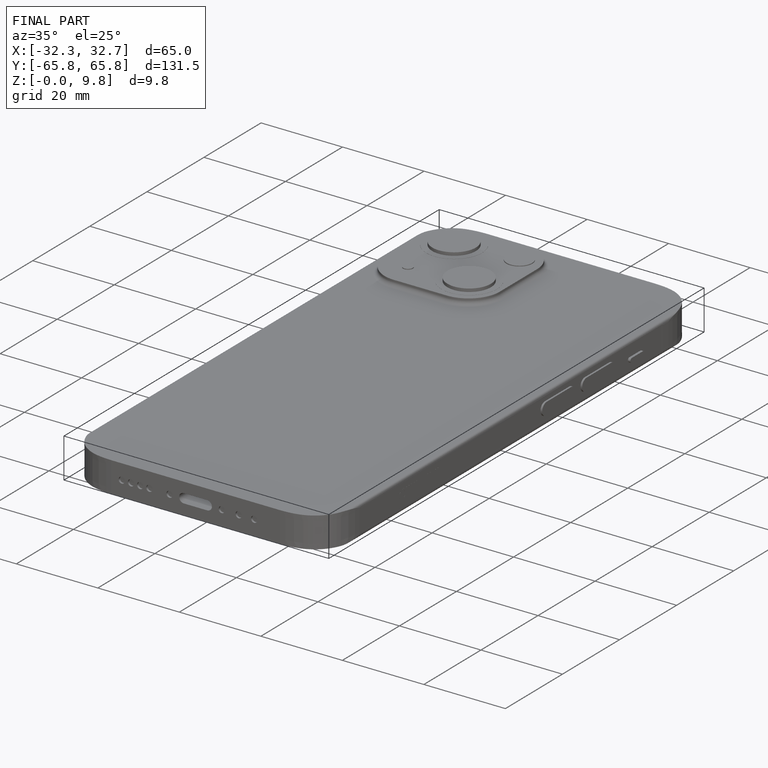
[diagram: finished part — iso view with bounding-box wireframe]
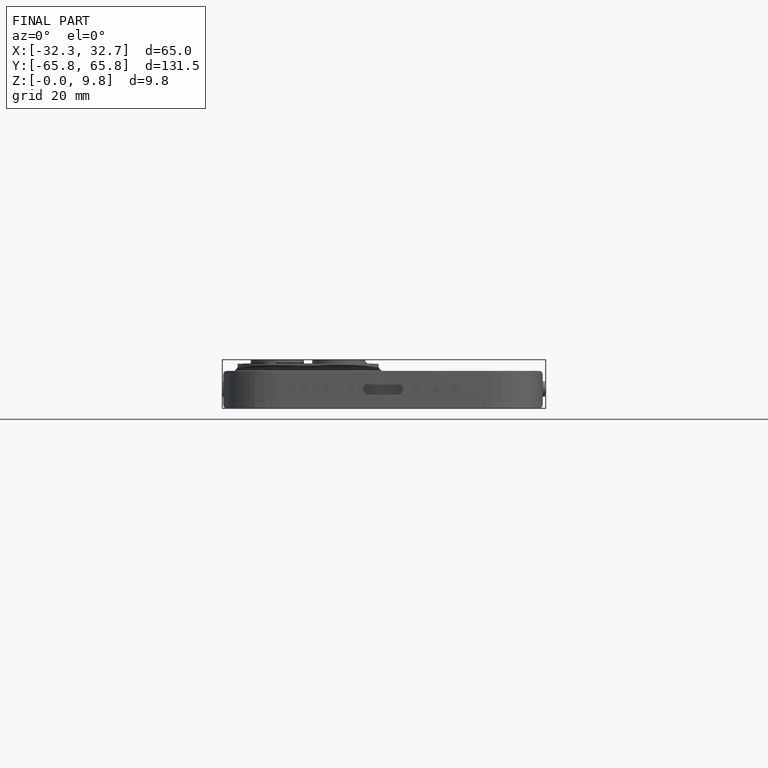
[diagram: finished part — front view with bounding-box wireframe]
